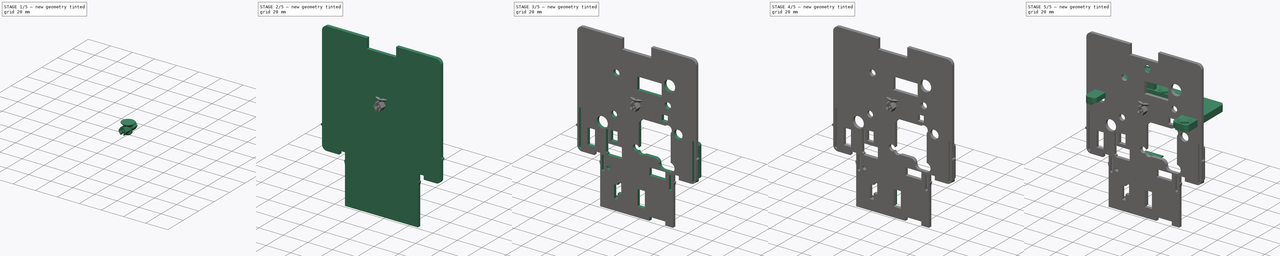
[diagram: build sequence overview — one tinted view per stage of 5, left to right]
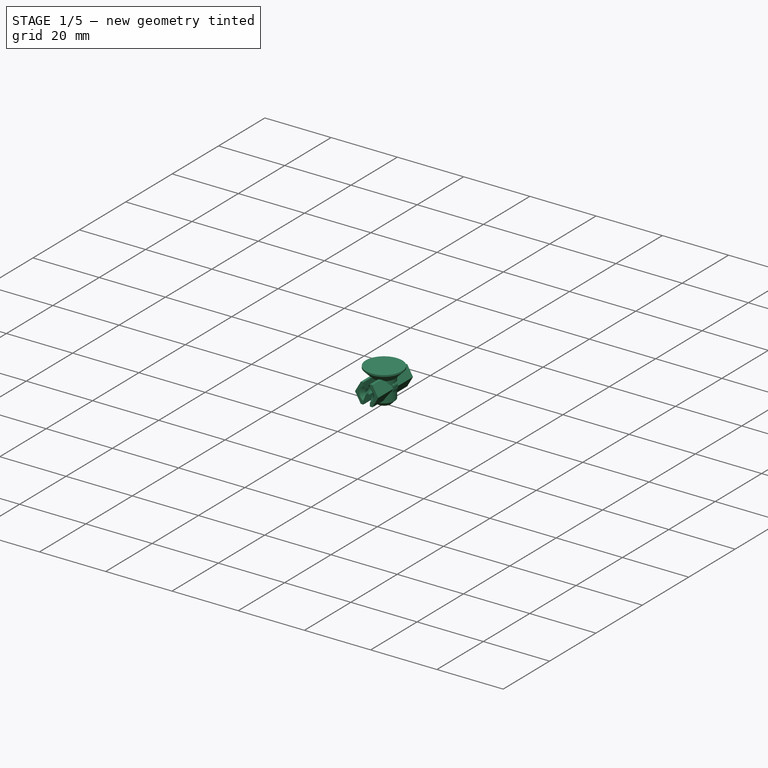
[diagram: stage 1 of 5 — iso view after this stage's code; geometry added in this stage tinted green]
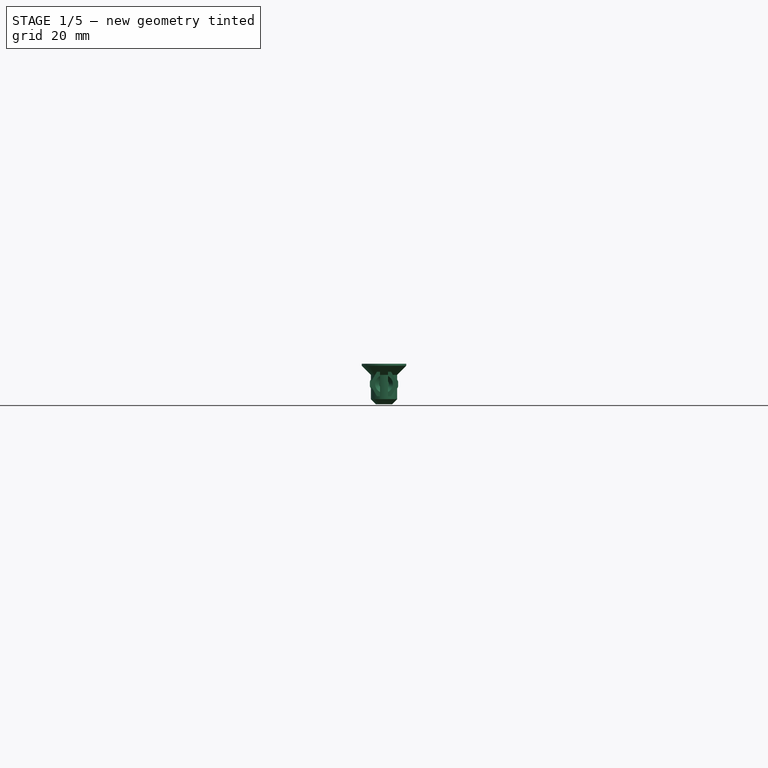
[diagram: stage 1 of 5 — front view after this stage's code; geometry added in this stage tinted green]
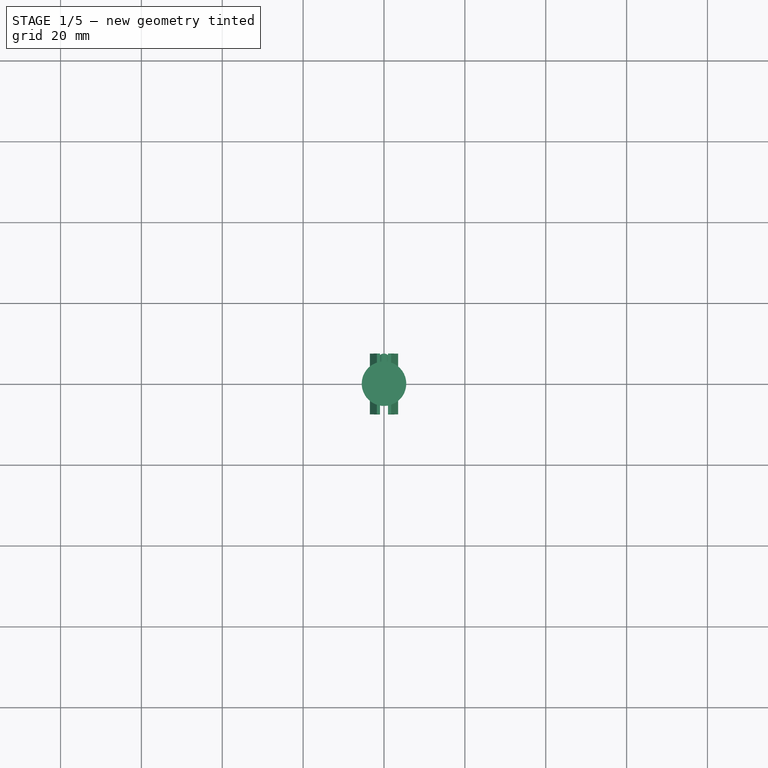
[diagram: stage 1 of 5 — top view after this stage's code; geometry added in this stage tinted green]
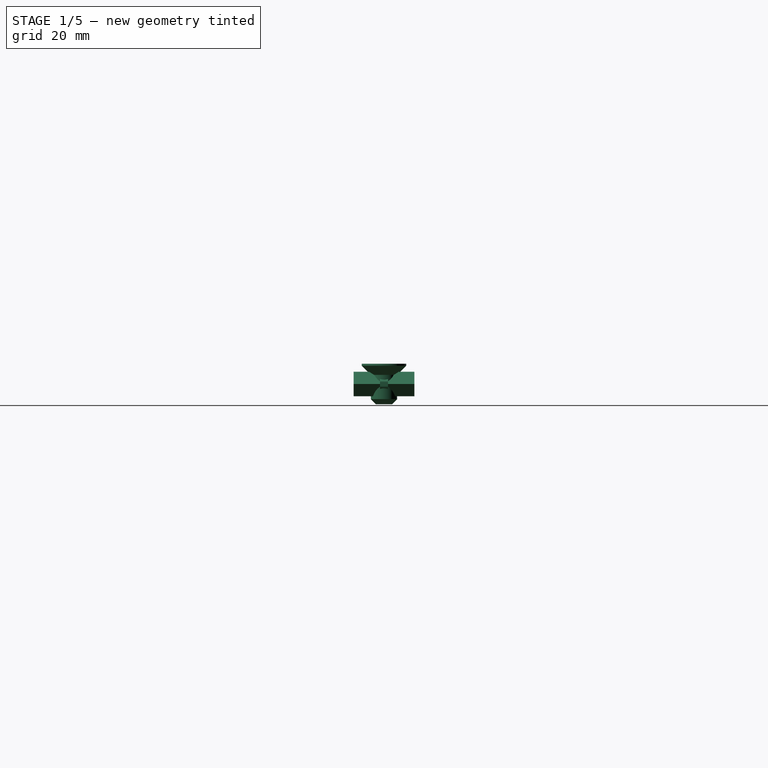
[diagram: stage 1 of 5 — right view after this stage's code; geometry added in this stage tinted green]
FCSTD DOCUMENT  (FreeCAD 1.1RUnknown)
Label: Sensors_Board
License: All rights reserved
LicenseURL: https://en.wikipedia.org/wiki/All_rights_reserved
objects: Sketcher::SketchObject×26, PartDesign::Pad×25, PartDesign::Pocket×8, PartDesign::Fillet×7, App::Point×5, PartDesign::Body×5, PartDesign::Chamfer×4, PartDesign::Mirrored×2, PartDesign::Hole×1, PartDesign::Revolution×1, Part::FeaturePython×1, PartDesign::Boolean×1
note: 202 computed .brp shape members not serialized (recipe doc carries the construction recipe); baked Part::Feature solids carry a one-line shape summary decoded from their .brp

FEATURE [PartDesign::Body] Body004  label="Sensors board"
  AllowCompound = false
  Group = -> [Sketch019,Pad010,Pad047,Pad039,Pad038,Fillet028,Pad048,Fillet029,Sketch022,Pocket005,Sketch029,Sketch033,Pad021,Sketch034,Pad022,Sketch035,Pocket010,Fillet010,Sketch036,Pocket032,Pad049,Pocket012,Pad063,Pad064,Chamfer004,Fillet021,Sketch038,Sketch066,Sketch065,Chamfer001,Sketch087,Pad073,Sketch088,Pad072,Pad074,Sketch090,Pad069,Pad070,Sketch091,Pad071,Pad075,Sketch092,Hole,Sketch095,Pad078,Pad079,+1 more]
  Origin = -> Origin004
  Placement = pos=(6e-16,11.4,-4.79) rot=(0,0,-1;3.14159rad)
  Tip = -> Fillet030
FEATURE [App::Point] Origin029
  Role = Origin
FEATURE [Sketcher::SketchObject] Sketch096
  ArcFitTolerance = 1e-06
  AttachmentSupport = -> [Origin028]
  ExternalTypes = [0]
  FullyConstrained = true
  MakeInternals = false
  MapMode = 5
  Placement = pos=(0,0,0) rot=(0.57735,0.57735,0.57735;2.0944rad)
  _ExternalGeoVersion = 1
  sketch-geometry (7):
    g0: LineSegment StartX=0 StartY=5 StartZ=0 EndX=5.5 EndY=5 EndZ=0
    g1: LineSegment StartX=5.5 StartY=5 StartZ=0 EndX=5.5 EndY=4.5 EndZ=0
    g2: LineSegment StartX=5.5 StartY=4.5 StartZ=0 EndX=3.25 EndY=2.25 EndZ=0
    g3: LineSegment StartX=3.25 StartY=2.25 StartZ=0 EndX=3.25 EndY=-3.75 EndZ=0
    g4: LineSegment StartX=3.25 StartY=-3.75 StartZ=0 EndX=2 EndY=-5 EndZ=0
    g5: LineSegment StartX=2 StartY=-5 StartZ=0 EndX=0 EndY=-5 EndZ=0
    g6: LineSegment StartX=0 StartY=-5 StartZ=0 EndX=0 EndY=5 EndZ=0
  constraints (20):
    c: Distance(g0) = 5.5
    c: PointOnObject(g0,g-2)
    c: Horizontal(g0)
    c: Distance(g1) = 0.5
    c: Coincident(g1,g0)
    c: Vertical(g1)
    c: Coincident(g2,g1)
    c: Angle(g1,g2) = 2.35619
    c: Coincident(g2,g3)
    c: Vertical(g3)
    c: Coincident(g3,g4)
    c: Coincident(g4,g5)
    c: Horizontal(g5)
    c: Coincident(g5,g6)
    c: Coincident(g6,g0)
    c: DistanceY(g6,g6) = 10
    c: Parallel(g4,g2)
    c: Distance(g3,g6) = 3.25
    c: Distance(g5,g5) = 2
    c: Symmetric(g0,g5,g-1)
FEATURE [PartDesign::Revolution] Revolution
  Angle = 360
  Angle2 = 0
  Axis = (0,0,1)
  Base = (0,0,0)
  FuseOrder = 0
  Profile = -> Sketch096
  ReferenceAxis = -> Sketch096 [V_Axis]
  Refine = true
  Reversed = true
  Suppressed = false
  Type = 0
FEATURE [PartDesign::Body] Body005  label="Bbolt_M6"
  AllowCompound = true
  Group = -> [Sketch096,Revolution,Sketch097,Pocket,Boolean]
  Origin = -> Origin028
  Placement = pos=(0,10.4,-6.4) rot=(1,0,0;1.5708rad)
  Tip = -> Boolean
FEATURE [Sketcher::SketchObject] Sketch082
  ArcFitTolerance = 1e-06
  AttachmentSupport = -> [XY_Plane015]
  ExternalTypes = [0]
  FullyConstrained = true
  MakeInternals = false
  MapMode = 5
  _ExternalGeoVersion = 0
  sketch-geometry (12):
    g0: ArcOfCircle CenterX=0 CenterY=6 CenterZ=0 NormalX=0 NormalY=0 NormalZ=1 AngleXU=0 Radius=1.5 StartAngle=5.6975 EndAngle=10.0105
    g1: ArcOfCircle CenterX=-2.5 CenterY=4.34169 CenterZ=0 NormalX=0 NormalY=0 NormalZ=1 AngleXU=0 Radius=1.5 StartAngle=1e-16 EndAngle=0.585686
    g2: ArcOfCircle CenterX=2.5 CenterY=4.34169 CenterZ=0 NormalX=0 NormalY=0 NormalZ=1 AngleXU=0 Radius=1.5 StartAngle=2.55591 EndAngle=3.14159
    g3: LineSegment [constr] StartX=0 StartY=6 StartZ=0 EndX=-2.5 EndY=4.34169 EndZ=0
    g4: LineSegment [constr] StartX=0 StartY=6 StartZ=0 EndX=2.5 EndY=4.34169 EndZ=0
    g5: LineSegment StartX=-1 StartY=4.34169 StartZ=0 EndX=-1 EndY=1 EndZ=0
    g6: LineSegment StartX=-1 StartY=1 StartZ=0 EndX=-3.5 EndY=1 EndZ=0
    g7: LineSegment StartX=-3.5 StartY=1 StartZ=0 EndX=-3.5 EndY=-1 EndZ=0
    g8: LineSegment StartX=-3.5 StartY=-1 StartZ=0 EndX=3.5 EndY=-1 EndZ=0
    g9: LineSegment StartX=3.5 StartY=-1 StartZ=0 EndX=3.5 EndY=1 EndZ=0
    g10: LineSegment StartX=3.5 StartY=1 StartZ=0 EndX=1 EndY=1 EndZ=0
    g11: LineSegment StartX=1 StartY=1 StartZ=0 EndX=1 EndY=4.34169 EndZ=0
  constraints (34):
    c: PointOnObject(g0,g-2)
    c: Horizontal(g0,g0)
    c: Radius(g0) = 1.5
    c: Coincident(g1,g0)
    c: Coincident(g2,g0)
    c: Coincident(g3,g0)
    c: Coincident(g3,g1)
    c: Coincident(g4,g0)
    c: Coincident(g4,g2)
    c: PointOnObject(g0,g4)
    c: PointOnObject(g0,g3)
    c: Horizontal(g2,g2)
    c: Horizontal(g1,g1)
    c: Horizontal(g1,g2)
    c: Tangent(g1,g5) = 1.5708
    c: Coincident(g5,g6)
    c: Horizontal(g6)
    c: Coincident(g6,g7)
    c: Vertical(g7)
    c: Coincident(g7,g8)
    c: Coincident(g8,g9)
    c: Coincident(g9,g10)
    c: Horizontal(g10)
    c: Coincident(g10,g11)
    c: Coincident(g11,g2)
    c: Vertical(g11)
    c: Symmetric(g7,g8,g-2)
    c: Horizontal(g10,g5)
    c: DistanceX(g8,g8) = 7
    c: DistanceY(g9,g9) = 2
    c: Symmetric(g9,g8,g-1)
    c: Distance(g11,g5) = 2
    c: Distance(g0,g10) = 5
    c: Radius(g2) = 1.5
FEATURE [PartDesign::Pad] Pad061
  Direction = (0,0,1)
  Length = 1.4
  Length2 = 1.4
  Profile = -> Sketch082
  ReferenceAxis = -> Sketch082 [N_Axis]
  Refine = true
  Reversed = true
  SideType = 1
  Suppressed = false
  Type = 0
  Type2 = 0
FEATURE [Sketcher::SketchObject] Sketch083
  ArcFitTolerance = 1e-06
  AttachmentSupport = -> [Pad061]
  ExternalTypes = [0]
  FullyConstrained = true
  MakeInternals = false
  MapMode = 5
  Placement = pos=(0,1,0) rot=(0,0.707107,0.707107;3.14159rad)
  _ExternalGeoVersion = 0
  sketch-geometry (2):
    g0: Circle CenterX=0 CenterY=0 CenterZ=0 NormalX=0 NormalY=0 NormalZ=1 AngleXU=0 Radius=1.5
    g1: Circle CenterX=0 CenterY=0 CenterZ=0 NormalX=0 NormalY=0 NormalZ=1 AngleXU=0 Radius=2.5
  constraints (4):
    c: Diameter(g0) = 3
    c: Coincident(g0,g-1)
    c: Coincident(g1,g0)
    c: Diameter(g1) = 5
FEATURE [PartDesign::Pocket] Pocket035
  BaseFeature = -> Pad061
  Direction = (0,-1,2e-16)
  Length = 7
  Length2 = 5
  Profile = -> Sketch083
  ReferenceAxis = -> Sketch083 [N_Axis]
  Refine = true
  Reversed = true
  SideType = 0
  Suppressed = false
  Type = 0
  Type2 = 0
FEATURE [PartDesign::Fillet] Fillet036
  Base = -> Pocket035 [Edge11,Edge27,Edge25,Edge9]
  BaseFeature = -> Pocket035
  Radius = 1
  Refine = true
  SupportTransform = false
  Suppressed = false
  UseAllEdges = false
FEATURE [App::Point] Origin021
  Role = Origin
FEATURE [PartDesign::Body] Body015  label="SDS_Board_Spacer_Rail"
  AllowCompound = false
  Group = -> [Sketch082,Pad061,Sketch083,Pocket035,Fillet036]
  Origin = -> Origin015
  Tip = -> Fillet036
FEATURE [Sketcher::SketchObject] Sketch084
  ArcFitTolerance = 1e-06
  AttachmentSupport = -> [XZ_Plane016]
  ExternalTypes = [0]
  FullyConstrained = true
  MakeInternals = false
  MapMode = 5
  Placement = pos=(0,0,0) rot=(1,0,0;1.5708rad)
  _ExternalGeoVersion = 0
  sketch-geometry (7):
    g0: LineSegment StartX=3.5 StartY=0 StartZ=0 EndX=1.75 EndY=3.03109 EndZ=0
    g1: LineSegment StartX=1.75 StartY=3.03109 StartZ=0 EndX=-1.75 EndY=3.03109 EndZ=0
    g2: LineSegment StartX=-1.75 StartY=3.03109 StartZ=0 EndX=-3.5 EndY=4e-16 EndZ=0
    g3: LineSegment StartX=-3.5 StartY=4e-16 StartZ=0 EndX=-1.75 EndY=-3.03109 EndZ=0
    g4: LineSegment StartX=-1.75 StartY=-3.03109 StartZ=0 EndX=1.75 EndY=-3.03109 EndZ=0
    g5: LineSegment StartX=1.75 StartY=-3.03109 StartZ=0 EndX=3.5 EndY=0 EndZ=0
    g6: Circle [constr] CenterX=0 CenterY=0 CenterZ=0 NormalX=0 NormalY=0 NormalZ=1 AngleXU=0 Radius=3.5
  constraints (16):
    c: Coincident(g0,g1)
    c: Coincident(g1,g2)
    c: Coincident(g2,g3)
    c: Coincident(g3,g4)
    c: Coincident(g4,g5)
    c: Coincident(g5,g0)
    c: Equal(g0, g1-g5) x5
    c: PointOnObject(g0,g6)
    c: PointOnObject(g1,g6)
    c: PointOnObject(g2,g6)
    c: PointOnObject(g3,g6)
    c: PointOnObject(g4,g6)
    c: PointOnObject(g5,g6)
    c: Coincident(g6,g-1)
    c: PointOnObject(g5,g-1)
    c: Diameter(g6) = 7
FEATURE [PartDesign::Pad] Pad062
  Direction = (0,-1,2e-16)
  Length = 7.5
  Length2 = 7.5
  Placement = pos=(0,0,0) rot=(1,0,0;1.5708rad)
  Profile = -> Sketch084
  ReferenceAxis = -> Sketch084 [N_Axis]
  Refine = true
  Reversed = true
  SideType = 1
  Suppressed = false
  Type = 0
  Type2 = 0
FEATURE [Sketcher::SketchObject] Sketch085
  ArcFitTolerance = 1e-06
  AttachmentSupport = -> [Pad062]
  ExternalTypes = [0]
  FullyConstrained = true
  MakeInternals = false
  MapMode = 5
  Placement = pos=(0,7.5,0) rot=(-1,0,0;1.5708rad)
  _ExternalGeoVersion = 0
  sketch-geometry (8):
    g0: LineSegment StartX=-1 StartY=-3.25 StartZ=0 EndX=1 EndY=-3.25 EndZ=0
    g1: LineSegment StartX=1 StartY=3.25 StartZ=0 EndX=-1 EndY=3.25 EndZ=0
    g2: ArcOfCircle CenterX=0 CenterY=0 CenterZ=0 NormalX=0 NormalY=0 NormalZ=1 AngleXU=0 Radius=1.2 StartAngle=2.55591 EndAngle=3.72728
    g3: ArcOfCircle CenterX=0 CenterY=0 CenterZ=0 NormalX=0 NormalY=0 NormalZ=1 AngleXU=0 Radius=1.2 StartAngle=5.6975 EndAngle=6.86887
    g4: LineSegment StartX=-1 StartY=3.25 StartZ=0 EndX=-1 EndY=0.663325 EndZ=0
    g5: LineSegment StartX=-1 StartY=-3.25 StartZ=0 EndX=-1 EndY=-0.663325 EndZ=0
    g6: LineSegment StartX=1 StartY=-0.663325 StartZ=0 EndX=1 EndY=-3.25 EndZ=0
    g7: LineSegment StartX=1 StartY=3.25 StartZ=0 EndX=1 EndY=0.663325 EndZ=0
  constraints (23):
    c: Horizontal(g0)
    c: Horizontal(g1)
    c: Symmetric(g0,g1,g-1)
    c: DistanceX(g1,g1) = 2
    c: Distance(g0,g1) = 6.5
    c: Coincident(g2,g-1)
    c: Coincident(g3,g2)
    c: Coincident(g4,g1)
    c: Coincident(g4,g2)
    c: Coincident(g5,g0)
    c: Coincident(g5,g2)
    c: Coincident(g6,g3)
    c: Coincident(g6,g0)
    c: Coincident(g7,g1)
    c: Coincident(g7,g3)
    c: Vertical(g7)
    c: Vertical(g6)
    c: Vertical(g5)
    c: Vertical(g4)
    c: Horizontal(g2,g3)
    c: Horizontal(g2,g3)
    c: Radius(g3) = 1.2
    c: Equal(g1,g0)
FEATURE [PartDesign::Pocket] Pocket036
  BaseFeature = -> Pad062
  Direction = (0,-1,-2e-16)
  Length = 5.5
  Length2 = 5
  Placement = pos=(0,0,0) rot=(1,0,0;1.5708rad)
  Profile = -> Sketch085
  ReferenceAxis = -> Sketch085 [N_Axis]
  Refine = true
  SideType = 0
  Suppressed = false
  Type = 0
  Type2 = 0
FEATURE [PartDesign::Mirrored] Mirrored008
  BaseFeature = -> Pocket036
  MirrorPlane = -> XZ_Plane016
  Originals = -> [Pocket036]
  Placement = pos=(0,0,0) rot=(1,0,0;1.5708rad)
  Refine = true
  Suppressed = false
  TransformMode = 0
FEATURE [Sketcher::SketchObject] Sketch086
  ArcFitTolerance = 1e-06
  AttachmentSupport = -> [Mirrored008]
  ExternalTypes = [0]
  FullyConstrained = true
  MakeInternals = false
  MapMode = 5
  Placement = pos=(0,2,5e-16) rot=(-1,0,0;1.5708rad)
  _ExternalGeoVersion = 0
  sketch-geometry (1):
    g0: Circle CenterX=0 CenterY=0 CenterZ=0 NormalX=0 NormalY=0 NormalZ=1 AngleXU=0 Radius=1.6
  constraints (2):
    c: Diameter(g0) = 3.2
    c: Coincident(g0,g-1)
FEATURE [PartDesign::Pocket] Pocket037
  BaseFeature = -> Mirrored008
  Direction = (0,-1,-2e-16)
  Length = 3.2
  Length2 = 5
  Placement = pos=(0,0,0) rot=(1,0,0;1.5708rad)
  Profile = -> Sketch086
  ReferenceAxis = -> Sketch086 [N_Axis]
  Refine = true
  Reversed = true
  SideType = 0
  Suppressed = false
  Type = 0
  Type2 = 0
FEATURE [PartDesign::Mirrored] Mirrored009
  BaseFeature = -> Pocket037
  MirrorPlane = -> XZ_Plane016
  Originals = -> [Pocket037]
  Placement = pos=(0,0,0) rot=(1,0,0;1.5708rad)
  Refine = true
  Suppressed = false
  TransformMode = 0
FEATURE [PartDesign::Chamfer] Chamfer007
  Angle = 45
  Base = -> Mirrored009 [Edge53,Edge20,Edge24,Edge58]
  BaseFeature = -> Mirrored009
  ChamferType = 0
  FlipDirection = false
  Placement = pos=(0,0,0) rot=(1,0,0;1.5708rad)
  Refine = true
  Size = 1
  Size2 = 1
  SupportTransform = false
  Suppressed = false
  UseAllEdges = false
FEATURE [App::Point] Origin020
  Role = Origin
FEATURE [PartDesign::Body] Body016  label="SDS_Board_Locking_Clip"
  AllowCompound = false
  Group = -> [Sketch084,Pad062,Sketch085,Pocket036,Mirrored008,Sketch086,Pocket037,Mirrored009,Chamfer007]
  Origin = -> Origin016
  Tip = -> Chamfer007
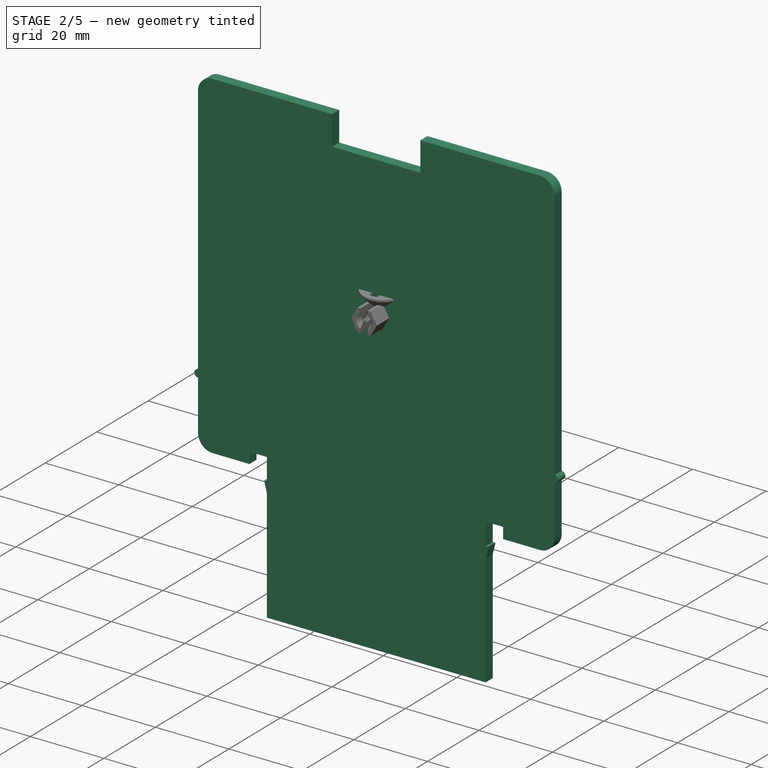
[diagram: stage 2 of 5 — iso view after this stage's code; geometry added in this stage tinted green]
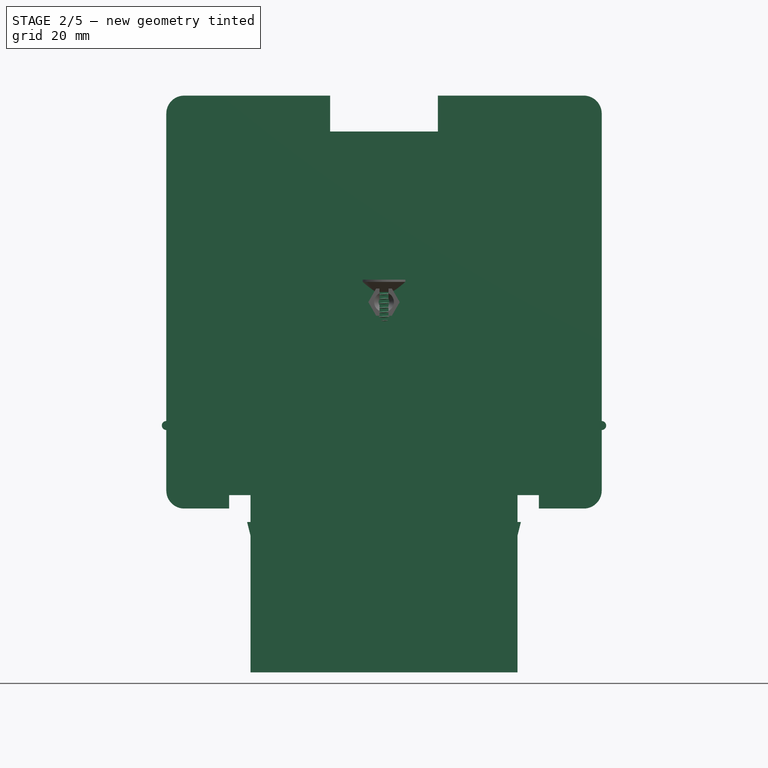
[diagram: stage 2 of 5 — front view after this stage's code; geometry added in this stage tinted green]
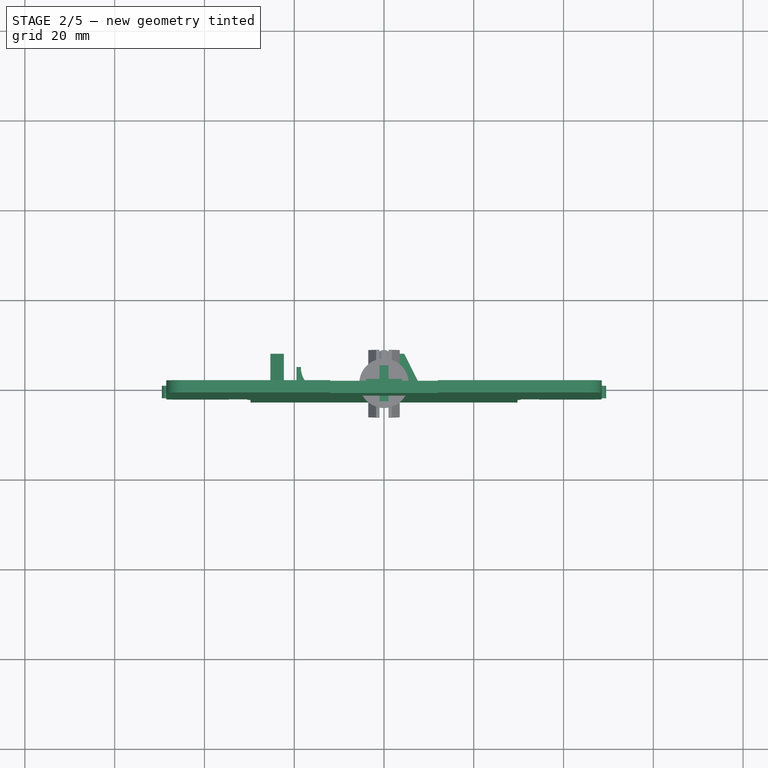
[diagram: stage 2 of 5 — top view after this stage's code; geometry added in this stage tinted green]
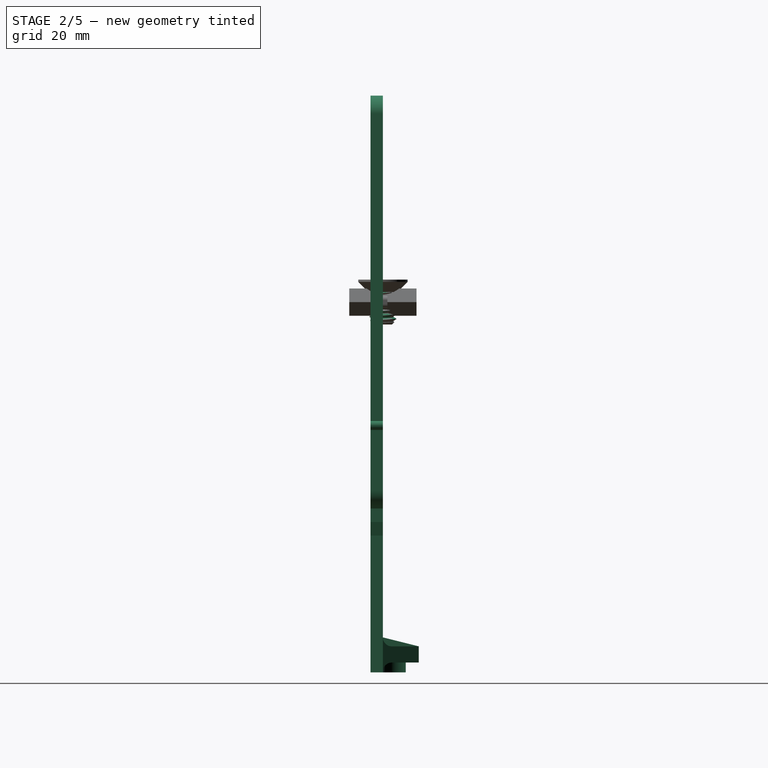
[diagram: stage 2 of 5 — right view after this stage's code; geometry added in this stage tinted green]
FEATURE [App::Point] Origin027
  Role = Origin
FEATURE [Sketcher::SketchObject] Sketch019
  ArcFitTolerance = 1e-06
  AttachmentSupport = -> [XZ_Plane004]
  ExternalTypes = [0]
  FullyConstrained = true
  MakeInternals = false
  MapMode = 5
  Placement = pos=(0,0,0) rot=(1,0,0;1.5708rad)
  _ExternalGeoVersion = 0
  sketch-geometry (30):
    g0: ArcOfCircle CenterX=-44.5 CenterY=42 CenterZ=0 NormalX=0 NormalY=0 NormalZ=1 AngleXU=0 Radius=4 StartAngle=1.5708 EndAngle=3.14159
    g1: ArcOfCircle CenterX=44.5 CenterY=42 CenterZ=0 NormalX=0 NormalY=0 NormalZ=1 AngleXU=0 Radius=4 StartAngle=0 EndAngle=1.5708
    g2: ArcOfCircle CenterX=-44.5 CenterY=-42 CenterZ=0 NormalX=0 NormalY=0 NormalZ=1 AngleXU=0 Radius=4 StartAngle=3.14159 EndAngle=4.71239
    g3: ArcOfCircle CenterX=44.5 CenterY=-42 CenterZ=0 NormalX=0 NormalY=0 NormalZ=1 AngleXU=0 Radius=4 StartAngle=4.71239 EndAngle=6.28319
    g4: LineSegment StartX=-44.5 StartY=-46 StartZ=0 EndX=-34.5 EndY=-46 EndZ=0
    g5: LineSegment StartX=44.5 StartY=-46 StartZ=0 EndX=34.5 EndY=-46 EndZ=0
    g6: LineSegment StartX=34.5 StartY=-46 StartZ=0 EndX=34.5 EndY=-43 EndZ=0
    g7: LineSegment StartX=-34.5 StartY=-46 StartZ=0 EndX=-34.5 EndY=-43 EndZ=0
    g8: LineSegment StartX=-34.5 StartY=-43 StartZ=0 EndX=-29.75 EndY=-43 EndZ=0
    g9: LineSegment StartX=34.5 StartY=-43 StartZ=0 EndX=29.75 EndY=-43 EndZ=0
    g10: LineSegment StartX=-29.75 StartY=-82.5 StartZ=0 EndX=29.75 EndY=-82.5 EndZ=0
    g11: LineSegment StartX=-12 StartY=46 StartZ=0 EndX=-12 EndY=38 EndZ=0
    g12: LineSegment StartX=-12 StartY=38 StartZ=0 EndX=12 EndY=38 EndZ=0
    g13: LineSegment StartX=12 StartY=38 StartZ=0 EndX=12 EndY=46 EndZ=0
    g14: LineSegment StartX=-44.5 StartY=46 StartZ=0 EndX=-12 EndY=46 EndZ=0
    g15: LineSegment StartX=12 StartY=46 StartZ=0 EndX=44.5 EndY=46 EndZ=0
    g16: LineSegment StartX=29.75 StartY=-52 StartZ=0 EndX=30.5 EndY=-49 EndZ=0
    g17: LineSegment StartX=-29.75 StartY=-52 StartZ=0 EndX=-30.5 EndY=-49 EndZ=0
    g18: ArcOfCircle CenterX=48.5 CenterY=-27.5 CenterZ=0 NormalX=0 NormalY=0 NormalZ=1 AngleXU=0 Radius=1 StartAngle=4.71239 EndAngle=7.85398
    g19: ArcOfCircle CenterX=-48.5 CenterY=-27.5 CenterZ=0 NormalX=0 NormalY=0 NormalZ=1 AngleXU=0 Radius=1 StartAngle=1.5708 EndAngle=4.71239
    g20: LineSegment StartX=-48.5 StartY=-42 StartZ=0 EndX=-48.5 EndY=-28.5 EndZ=0
    g21: LineSegment StartX=-48.5 StartY=-26.5 StartZ=0 EndX=-48.5 EndY=42 EndZ=0
    g22: LineSegment StartX=48.5 StartY=42 StartZ=0 EndX=48.5 EndY=-26.5 EndZ=0
    g23: LineSegment StartX=48.5 StartY=-42 StartZ=0 EndX=48.5 EndY=-28.5 EndZ=0
    g24: LineSegment StartX=29.75 StartY=-49 StartZ=0 EndX=30.5 EndY=-49 EndZ=0
    g25: LineSegment StartX=29.75 StartY=-43 StartZ=0 EndX=29.75 EndY=-49 EndZ=0
    g26: LineSegment StartX=29.75 StartY=-52 StartZ=0 EndX=29.75 EndY=-82.5 EndZ=0
    g27: LineSegment StartX=-30.5 StartY=-49 StartZ=0 EndX=-29.75 EndY=-49 EndZ=0
    g28: LineSegment StartX=-29.75 StartY=-43 StartZ=0 EndX=-29.75 EndY=-49 EndZ=0
    g29: LineSegment StartX=-29.75 StartY=-52 StartZ=0 EndX=-29.75 EndY=-82.5 EndZ=0
  constraints (89):
    c: Symmetric(g0,g1,g-2)
    c: Equal(g1,g0)
    c: Radius(g1) = 4
    c: Horizontal(g0,g0)
    c: Vertical(g0,g0)
    c: Vertical(g1,g1)
    c: Horizontal(g1,g1)
    c: DistanceX(g0,g1) = 97
    c: Vertical(g3,g3)
    c: Vertical(g2,g2)
    c: Horizontal(g2,g2)
    c: Horizontal(g3,g3)
    c: Equal(g2,g3)
    c: Equal(g0,g2)
    c: Tangent(g4,g2) = -1.5708
    c: Coincident(g5,g3)
    c: Horizontal(g5)
    c: Horizontal(g4,g5)
    c: DistanceY(g3,g1) = 92
    c: Equal(g4,g5)
    c: DistanceX(g4,g5) = 69
    c: Coincident(g6,g5)
    c: Vertical(g6)
    c: Coincident(g7,g4)
    c: Vertical(g7)
    c: Equal(g6,g7)
    c: DistanceY(g6,g6) = 3
    c: Coincident(g8,g7)
    c: Horizontal(g8)
    c: Coincident(g9,g6)
    c: Horizontal(g9)
    c: Horizontal(g10)
    c: Equal(g8,g9)
    c: DistanceX(g10,g10) = 59.5
    c: DistanceY(g10,g9) = 39.5
    c: Symmetric(g3,g1,g-1)
    c: Coincident(g11,g12)
    c: Coincident(g12,g13)
    c: Vertical(g11)
    c: Vertical(g13)
    c: Horizontal(g12)
    c: Symmetric(g13,g11,g-2)
    c: DistanceY(g13,g13) = 8
    c: DistanceX(g11,g13) = 24
    c: Coincident(g14,g0)
    c: Coincident(g14,g11)
    c: Coincident(g15,g13)
    c: Tangent(g15,g1) = 1.5708
    c: Symmetric(g17,g16,g-2)
    c: Equal(g19,g18)
    c: Radius(g18) = 1
    c: Symmetric(g19,g18,g-2)
    c: Distance(g19,g-1) = 26.5
    c: Coincident(g20,g2)
    c: Coincident(g20,g19)
    c: Vertical(g20)
    c: Coincident(g21,g0)
    c: Vertical(g21)
    c: Vertical(g19,g19)
    c: Coincident(g22,g1)
    c: Coincident(g22,g18)
    c: Vertical(g22)
    c: Coincident(g23,g3)
    c: Coincident(g23,g18)
    c: Vertical(g23)
    c: Vertical(g18,g18)
    c: Coincident(g19,g21)
    c: DistanceY(g17,g-1) = 49
    c: Coincident(g24,g16)
    c: Horizontal(g24)
    c: Vertical(g24,g16)
    c: DistanceX(g24,g24) = 0.75
    c: Coincident(g25,g9)
    c: Coincident(g25,g24)
    c: Vertical(g25)
    c: Coincident(g26,g16)
    c: Coincident(g26,g10)
    c: Vertical(g26)
    c: DistanceY(g16,g24) = 3
    c: Coincident(g27,g17)
    c: Horizontal(g27)
    c: Equal(g27,g24)
    c: Coincident(g28,g8)
    c: Coincident(g28,g27)
    c: Coincident(g29,g17)
    c: Coincident(g29,g10)
    c: Vertical(g29)
    c: Horizontal(g16,g17)
    c: Vertical(g17,g27)
FEATURE [PartDesign::Pad] Pad010  label="Base"
  Direction = (0,-1,2e-16)
  Length = 2.75
  Length2 = 10
  Placement = pos=(0,0,0) rot=(1,0,0;1.5708rad)
  Profile = -> Sketch019
  ReferenceAxis = -> Sketch019 [N_Axis]
  SideType = 0
  Suppressed = false
  Type = 0
  Type2 = 0
FEATURE [Sketcher::SketchObject] Sketch022  label="holes"
  ArcFitTolerance = 1e-06
  AttachmentSupport = -> [Pad010]
  ExternalTypes = [0]
  FullyConstrained = true
  MakeInternals = false
  MapMode = 5
  Placement = pos=(0,-2.75,0) rot=(1,0,0;1.5708rad)
  _ExternalGeoVersion = 0
  sketch-geometry (84):
    g0: LineSegment [constr] StartX=-32 StartY=27 StartZ=0 EndX=-32 EndY=-43 EndZ=0
    g1: LineSegment [constr] StartX=-32 StartY=-43 StartZ=0 EndX=38 EndY=-43 EndZ=0
    g2: LineSegment [constr] StartX=38 StartY=-43 StartZ=0 EndX=38 EndY=27 EndZ=0
    g3: LineSegment [constr] StartX=38 StartY=27 StartZ=0 EndX=-32 EndY=27 EndZ=0
    g4: LineSegment StartX=0.5 StartY=21.5 StartZ=0 EndX=0.5 EndY=11.5 EndZ=0
    g5: LineSegment StartX=0.5 StartY=11.5 StartZ=0 EndX=20.5 EndY=11.5 EndZ=0
    g6: LineSegment StartX=20.5 StartY=11.5 StartZ=0 EndX=20.5 EndY=21.5 EndZ=0
    g7: LineSegment StartX=20.5 StartY=21.5 StartZ=0 EndX=0.5 EndY=21.5 EndZ=0
    g8: Circle CenterX=-16.5 CenterY=19.5 CenterZ=0 NormalX=0 NormalY=0 NormalZ=1 AngleXU=0 Radius=2.5
    g9: Circle CenterX=25.5 CenterY=6.5 CenterZ=0 NormalX=0 NormalY=0 NormalZ=1 AngleXU=0 Radius=2.5
    g10: Circle CenterX=-18.5 CenterY=-11.5 CenterZ=0 NormalX=0 NormalY=0 NormalZ=1 AngleXU=0 Radius=2.5
    g11: Circle CenterX=34 CenterY=-12.5 CenterZ=0 NormalX=0 NormalY=0 NormalZ=1 AngleXU=0 Radius=3.5
    g12: LineSegment StartX=-21 StartY=-23.75 StartZ=0 EndX=-21 EndY=-31.75 EndZ=0
    g13: LineSegment StartX=-21 StartY=-31.75 StartZ=0 EndX=-15.5 EndY=-31.75 EndZ=0
    g14: LineSegment StartX=-15.5 StartY=-31.75 StartZ=0 EndX=-15.5 EndY=-23.75 EndZ=0
    g15: LineSegment StartX=-15.5 StartY=-23.75 StartZ=0 EndX=-21 EndY=-23.75 EndZ=0
    g16: ArcOfCircle CenterX=-24 CenterY=-25 CenterZ=0 NormalX=0 NormalY=0 NormalZ=1 AngleXU=0 Radius=1 StartAngle=0 EndAngle=3.14159
    g17: ArcOfCircle CenterX=-24 CenterY=-41 CenterZ=0 NormalX=0 NormalY=0 NormalZ=1 AngleXU=0 Radius=1 StartAngle=3.14159 EndAngle=4.71239
    g18: LineSegment StartX=-25 StartY=-25 StartZ=0 EndX=-25 EndY=-41 EndZ=0
    g19: LineSegment StartX=-23 StartY=-25 StartZ=0 EndX=-23 EndY=-34.25 EndZ=0
    g20: LineSegment StartX=-23 StartY=-34.25 StartZ=0 EndX=-12 EndY=-34.25 EndZ=0
    g21: LineSegment StartX=-12 StartY=-43 StartZ=0 EndX=-24 EndY=-43 EndZ=0
    g22: LineSegment StartX=-24 StartY=-42 StartZ=0 EndX=-24 EndY=-43 EndZ=0
    g23: ArcOfCircle CenterX=25.7287 CenterY=-10.9213 CenterZ=0 NormalX=0 NormalY=0 NormalZ=1 AngleXU=0 Radius=3 StartAngle=5.49779 EndAngle=8.63938
    g24: ArcOfCircle CenterX=-0.5 CenterY=-31.5 CenterZ=0 NormalX=0 NormalY=0 NormalZ=1 AngleXU=0 Radius=2.5 StartAngle=0.348166 EndAngle=5.39179
    g25: ArcOfCircle CenterX=3.97132 CenterY=-32.6787 CenterZ=0 NormalX=0 NormalY=0 NormalZ=1 AngleXU=0 Radius=3 StartAngle=3.39985 EndAngle=5.49779
    g26: LineSegment StartX=1.85 StartY=-30.6471 StartZ=0 EndX=1.85 EndY=-11.982 EndZ=0
    g27: LineSegment StartX=1.85 StartY=-11.982 StartZ=0 EndX=5.03198 EndY=-8.8 EndZ=0
    g28: LineSegment StartX=5.03198 StartY=-8.8 StartZ=0 EndX=23.6074 EndY=-8.8 EndZ=0
    g29: LineSegment StartX=27.85 StartY=-13.0426 StartZ=0 EndX=27.85 EndY=-35.0175 EndZ=0
    g30: LineSegment StartX=14.8 StartY=-34.8 StartZ=0 EndX=6.09264 EndY=-34.8 EndZ=0
    g31: LineSegment [constr] StartX=23.6074 StartY=-8.8 StartZ=0 EndX=27.85 EndY=-13.0426 EndZ=0
    g32: LineSegment [constr] StartX=6.09264 StartY=-34.8 StartZ=0 EndX=1.85 EndY=-30.5574 EndZ=0
    g33: LineSegment StartX=20.5 StartY=-1 StartZ=0 EndX=20.5 EndY=-6 EndZ=0
    g34: LineSegment StartX=20.5 StartY=-6 StartZ=0 EndX=25.5 EndY=-6 EndZ=0
    g35: LineSegment StartX=25.5 StartY=-6 StartZ=0 EndX=25.5 EndY=-1 EndZ=0
    g36: LineSegment StartX=25.5 StartY=-1 StartZ=0 EndX=20.5 EndY=-1 EndZ=0
    g37: Circle CenterX=27 CenterY=21.5 CenterZ=0 NormalX=0 NormalY=0 NormalZ=1 AngleXU=0 Radius=4.5
    g38: Circle CenterX=-28 CenterY=-20 CenterZ=0 NormalX=0 NormalY=0 NormalZ=1 AngleXU=0 Radius=4.5
    g39: ArcOfCircle CenterX=27.5 CenterY=-38.5 CenterZ=0 NormalX=0 NormalY=0 NormalZ=1 AngleXU=0 Radius=3.5 StartAngle=4.71239 EndAngle=7.75381
    g40: LineSegment StartX=45.5 StartY=-14 StartZ=0 EndX=45.5 EndY=-44.5 EndZ=0
    g41: LineSegment StartX=47 StartY=-14 StartZ=0 EndX=47 EndY=-43 EndZ=0
    g42: LineSegment StartX=-45.5 StartY=-14 StartZ=0 EndX=-45.5 EndY=-44.5 EndZ=0
    g43: LineSegment StartX=-47 StartY=-14 StartZ=0 EndX=-47 EndY=-43 EndZ=0
    g44: LineSegment StartX=-47 StartY=-14 StartZ=0 EndX=-45.5 EndY=-14 EndZ=0
    g45: ArcOfCircle CenterX=-45.5 CenterY=-43 CenterZ=0 NormalX=0 NormalY=0 NormalZ=1 AngleXU=0 Radius=1.5 StartAngle=3.14159 EndAngle=4.71239
    g46: LineSegment StartX=45.5 StartY=-14 StartZ=0 EndX=47 EndY=-14 EndZ=0
    g47: ArcOfCircle CenterX=45.5 CenterY=-43 CenterZ=0 NormalX=0 NormalY=0 NormalZ=1 AngleXU=0 Radius=1.5 StartAngle=4.71239 EndAngle=6.28319
    g48: LineSegment StartX=27.5 StartY=-42 StartZ=0 EndX=22 EndY=-42 EndZ=0
    g49: ArcOfCircle CenterX=14.8 CenterY=-38.4 CenterZ=0 NormalX=0 NormalY=0 NormalZ=1 AngleXU=0 Radius=3.6 StartAngle=1e-16 EndAngle=1.5708
    g50: ArcOfCircle CenterX=22 CenterY=-38.4 CenterZ=0 NormalX=0 NormalY=0 NormalZ=1 AngleXU=0 Radius=3.6 StartAngle=3.14159 EndAngle=4.71239
    g51: LineSegment StartX=10.5 StartY=-82.5 StartZ=0 EndX=23.5 EndY=-82.5 EndZ=0
    g52: LineSegment StartX=23.5 StartY=-82.5 StartZ=0 EndX=23.5 EndY=-79.5 EndZ=0
    g53: LineSegment StartX=23.5 StartY=-79.5 StartZ=0 EndX=10.5 EndY=-79.5 EndZ=0
    g54: LineSegment StartX=10.5 StartY=-79.5 StartZ=0 EndX=10.5 EndY=-82.5 EndZ=0
    g55: LineSegment StartX=10.5 StartY=-43 StartZ=0 EndX=10.5 EndY=-49 EndZ=0
    g56: LineSegment StartX=10.5 StartY=-49 StartZ=0 EndX=23.5 EndY=-49 EndZ=0
    g57: LineSegment StartX=23.5 StartY=-49 StartZ=0 EndX=23.5 EndY=-43 EndZ=0
    g58: LineSegment StartX=23.5 StartY=-43 StartZ=0 EndX=10.5 EndY=-43 EndZ=0
    g59: LineSegment StartX=-18.5 StartY=-63 StartZ=0 EndX=-18.5 EndY=-74 EndZ=0
    g60: LineSegment StartX=-18.5 StartY=-74 StartZ=0 EndX=-15.5 EndY=-74 EndZ=0
    g61: LineSegment StartX=-15.5 StartY=-74 StartZ=0 EndX=-15.5 EndY=-69 EndZ=0
    g62: LineSegment StartX=-15.5 StartY=-69 StartZ=0 EndX=-12.5 EndY=-69 EndZ=0
    g63: LineSegment StartX=-12.5 StartY=-69 StartZ=0 EndX=-12.5 EndY=-61 EndZ=0
    g64: LineSegment StartX=-12.5 StartY=-61 StartZ=0 EndX=-15.5 EndY=-61 EndZ=0
    g65: LineSegment StartX=-15.5 StartY=-61 StartZ=0 EndX=-15.5 EndY=-63 EndZ=0
    g66: LineSegment StartX=-15.5 StartY=-63 StartZ=0 EndX=-18.5 EndY=-63 EndZ=0
    g67: LineSegment StartX=-12 StartY=-43 StartZ=0 EndX=-12 EndY=-34.25 EndZ=0
    g68: LineSegment StartX=0.75 StartY=-61.5 StartZ=0 EndX=0.75 EndY=-74.5 EndZ=0
    g69: LineSegment StartX=0.75 StartY=-74.5 StartZ=0 EndX=6.75 EndY=-74.5 EndZ=0
    g70: LineSegment StartX=6.75 StartY=-74.5 StartZ=0 EndX=6.75 EndY=-61.5 EndZ=0
    g71: LineSegment StartX=6.75 StartY=-61.5 StartZ=0 EndX=0.75 EndY=-61.5 EndZ=0
    g72: LineSegment StartX=-34 StartY=-27 StartZ=0 EndX=-40 EndY=-27 EndZ=0
    g73: LineSegment StartX=-40 StartY=-27 StartZ=0 EndX=-40 EndY=-40 EndZ=0
    g74: LineSegment StartX=-40 StartY=-40 StartZ=0 EndX=-34 EndY=-40 EndZ=0
    g75: LineSegment StartX=-34 StartY=-40 StartZ=0 EndX=-34 EndY=-27 EndZ=0
    g76: ArcOfCircle CenterX=27.5 CenterY=-45 CenterZ=0 NormalX=0 NormalY=0 NormalZ=1 AngleXU=0 Radius=1 StartAngle=-9e-16 EndAngle=3.14159
    g77: ArcOfCircle CenterX=27.5 CenterY=-55 CenterZ=0 NormalX=0 NormalY=0 NormalZ=1 AngleXU=0 Radius=1 StartAngle=3.14159 EndAngle=6.28319
    g78: LineSegment StartX=28.5 StartY=-45 StartZ=0 EndX=28.5 EndY=-55 EndZ=0
    g79: LineSegment StartX=26.5 StartY=-45 StartZ=0 EndX=26.5 EndY=-55 EndZ=0
    g80: ArcOfCircle CenterX=-27.5 CenterY=-45 CenterZ=0 NormalX=0 NormalY=0 NormalZ=1 AngleXU=0 Radius=1 StartAngle=-9e-16 EndAngle=3.14159
    g81: ArcOfCircle CenterX=-27.5 CenterY=-55 CenterZ=0 NormalX=0 NormalY=0 NormalZ=1 AngleXU=0 Radius=1 StartAngle=3.14159 EndAngle=6.28319
    g82: LineSegment StartX=-26.5 StartY=-45 StartZ=0 EndX=-26.5 EndY=-55 EndZ=0
    g83: LineSegment StartX=-28.5 StartY=-45 StartZ=0 EndX=-28.5 EndY=-55 EndZ=0
  constraints (251):
    c: Coincident(g0,g1)
    c: Coincident(g1,g2)
    c: Coincident(g2,g3)
    c: Coincident(g3,g0)
    c: Vertical(g0)
    c: Vertical(g2)
    c: Horizontal(g1)
    c: DistanceX(g3,g3) = 70
    c: Equal(g3,g2)
    c: Coincident(g4,g5)
    c: Coincident(g5,g6)
    c: Coincident(g6,g7)
    c: Coincident(g7,g4)
    c: Vertical(g4)
    c: Vertical(g6)
    c: Horizontal(g5)
    c: Horizontal(g7)
    c: DistanceY(g0,g-1) = 43
    c: Coincident(g12,g13)
    c: Coincident(g13,g14)
    c: Coincident(g14,g15)
    c: Coincident(g15,g12)
    c: Vertical(g12)
    c: Vertical(g14)
    c: Horizontal(g13)
    c: Horizontal(g15)
    c: Tangent(g16,g18) = -1.5708
    c: Tangent(g17,g18) = -1.5708
    c: Coincident(g19,g16)
    c: Vertical(g19)
    c: Coincident(g20,g19)
    c: Horizontal(g20)
    c: Horizontal(g21)
    c: Coincident(g22,g17)
    c: Coincident(g22,g21)
    c: Vertical(g22)
    c: Horizontal(g16,g16)
    c: Coincident(g25,g24)
    c: Coincident(g26,g24)
    c: Vertical(g26)
    c: Coincident(g27,g26)
    c: Coincident(g28,g23)
    c: Horizontal(g28)
    c: Coincident(g29,g23)
    c: Vertical(g29)
    c: Coincident(g30,g25)
    c: Horizontal(g30)
    c: Distance(g9,g2) = 12.5
    c: Distance(g9,g3) = 20.5
    c: Diameter(g9) = 5
    c: Diameter(g11) = 7
    c: Diameter(g8) = 5
    c: Diameter(g10) = 5
    c: Radius(g24) = 2.5
    c: Distance(g12,g19) = 2
    c: DistanceX(g15,g15) = 5.5
    c: DistanceY(g14,g14) = 8
    c: Distance(g20,g13) = 2.5
    c: Distance(g17,g1) = 2
    c: Distance(g17,g0) = 8
    c: Distance(g10,g0) = 13.5
    c: Distance(g10,g1) = 31.5
    c: Distance(g29,g26) = 26
    c: Distance(g30,g28) = 26
    c: Coincident(g27,g28)
    c: Coincident(g31,g23)
    c: Coincident(g31,g23)
    c: PointOnObject(g23,g31)
    c: Distance(g2,g29) = 10.15
    c: Distance(g1,g30) = 8.2
    c: Distance(g27,g27) = 4.5
    c: Coincident(g32,g25)
    c: Vertical(g32,g24)
    c: Equal(g32,g31)
    c: Parallel(g31,g32)
    c: DistanceY(g4,g4) = 10
    c: DistanceX(g5,g5) = 20
    c: Distance(g3,g7) = 5.5
    c: Distance(g2,g6) = 17.5
    c: Distance(g8,g3) = 7.5
    c: Distance(g8,g0) = 15.5
    c: Distance(g11,g2) = 4
    c: Distance(g11,g1) = 30.5
    c: Distance(g24,g1) = 11.5
    c: Distance(g24,g2) = 38.5
    c: Symmetric(g32,g25,g25)
    c: Coincident(g33,g34)
    c: Coincident(g34,g35)
    c: Coincident(g35,g36)
    c: Coincident(g36,g33)
    c: Vertical(g33)
    c: Vertical(g35)
    c: Horizontal(g34)
    c: Horizontal(g36)
    c: Distance(g33,g35) = 5
    c: Equal(g33,g36)
    c: Distance(g2,g35) = 12.5
    c: Distance(g36,g3) = 28
    c: Diameter(g37) = 9
    c: Distance(g39,g2) = 10.5
    c: Distance(g39,g1) = 4.5
    c: Radius(g39) = 3.5
    c: Coincident(g29,g39)
    c: Radius(g23) = 3
    c: Angle(g26,g27) = 2.35619
    c: Perpendicular(g31,g27)
    c: Distance(g37,g3) = 5.5
    c: Distance(g38,g0) = 4
    c: Distance(g38,g1) = 23
    c: Equal(g38,g37)
    c: Distance(g37,g2) = 11
    c: Distance(g2,g-2) = 38
    c: Horizontal(g3)
    c: Vertical(g40)
    c: Vertical(g41)
    c: Vertical(g42)
    c: Vertical(g43)
    c: Symmetric(g40,g42,g-2)
    c: Equal(g42,g40)
    c: Distance(g40,g-2) = 45.5
    c: DistanceY(g41,g41) = 29
    c: Distance(g42,g-1) = 44.5
    c: Coincident(g44,g43)
    c: Coincident(g44,g42)
    c: Horizontal(g44)
    c: DistanceX(g44,g44) = 1.5
    c: PointOnObject(g45,g42)
    c: Coincident(g45,g43)
    c: Coincident(g45,g42)
    c: Horizontal(g45,g43)
    c: Coincident(g46,g40)
    c: Coincident(g46,g41)
    c: Horizontal(g46)
    c: Equal(g46,g44)
    c: PointOnObject(g47,g40)
    c: Coincident(g47,g40)
    c: Coincident(g47,g41)
    c: Horizontal(g47,g41)
    c: Vertical(g39,g39)
    c: Tangent(g48,g39) = 1.5708
    c: Coincident(g49,g30)
    c: Coincident(g50,g48)
    c: Coincident(g50,g49)
    c: Vertical(g30,g49)
    c: Vertical(g48,g50)
    c: Horizontal(g49,g50)
    c: Horizontal(g49,g50)
    c: DistanceX(g48,g48) = 5.5
    c: Equal(g50,g49)
    c: Coincident(g51,g52)
    c: Coincident(g52,g53)
    c: Coincident(g53,g54)
    c: Coincident(g54,g51)
    c: Horizontal(g51)
    c: Horizontal(g53)
    c: Vertical(g52)
    c: Vertical(g54)
    c: DistanceY(g52,g52) = 3
    c: Distance(g1,g51) = 39.5
    c: Coincident(g55,g56)
    c: Coincident(g56,g57)
    c: Coincident(g57,g58)
    c: Coincident(g58,g55)
    c: Vertical(g55)
    c: Vertical(g57)
    c: Horizontal(g56)
    c: Horizontal(g58)
    c: PointOnObject(g55,g1)
    c: Vertical(g59)
    c: Coincident(g59,g60)
    c: Horizontal(g60)
    c: Coincident(g60,g61)
    c: Vertical(g61)
    c: Coincident(g61,g62)
    c: Horizontal(g62)
    c: Coincident(g62,g63)
    c: Vertical(g63)
    c: Coincident(g63,g64)
    c: Horizontal(g64)
    c: Coincident(g64,g65)
    c: Vertical(g65)
    c: Coincident(g65,g66)
    c: Coincident(g66,g59)
    c: Horizontal(g66)
    c: Equal(g62,g66)
    c: DistanceX(g62,g62) = 3
    c: Vertical(g64,g60)
    c: Distance(g-2,g63) = 12.5
    c: DistanceY(g59,g59) = 11
    c: DistanceY(g63,g63) = 8
    c: Distance(g64,g60) = 13
    c: Distance(g1,g64) = 18
    c: DistanceY(g19,g19) = 9.25
    c: Vertical(g18)
    c: DistanceY(g17,g16) = 16
    c: DistanceX(g20,g20) = 11
    c: Radius(g16) = 1
    c: Equal(g17,g16)
    c: Vertical(g17,g17)
    c: Coincident(g67,g20)
    c: Vertical(g67)
    c: Coincident(g68,g69)
    c: Coincident(g69,g70)
    c: Coincident(g70,g71)
    c: Coincident(g71,g68)
    c: Vertical(g68)
    c: Vertical(g70)
    c: Horizontal(g69)
    c: Horizontal(g71)
    c: Distance(g70,g-2) = 6.75
    c: Equal(g55,g71)
    c: DistanceX(g51,g51) = 13
    c: Equal(g53,g56)
    c: Vertical(g56,g52)
    c: Equal(g56,g70)
    c: Distance(g1,g71) = 18.5
    c: Coincident(g21,g67)
    c: DistanceX(g71,g71) = 6
    c: Coincident(g72,g73)
    c: Coincident(g73,g74)
    c: Coincident(g74,g75)
    c: Coincident(g75,g72)
    c: Horizontal(g72)
    c: Horizontal(g74)
    c: Vertical(g73)
    c: Vertical(g75)
    c: Equal(g74,g71)
    c: Equal(g73,g56)
    c: Distance(g1,g74) = 3
    c: DistanceY(g67,g67) = 8.75
    c: Tangent(g76,g78) = 1.5708
    c: Tangent(g76,g79) = -1.5708
    c: Tangent(g77,g78) = 1.5708
    c: Tangent(g77,g79) = -1.5708
    c: Equal(g76,g77)
    c: Radius(g76) = 1
    c: Vertical(g78)
    c: Tangent(g80,g82) = 1.5708
    c: Tangent(g80,g83) = -1.5708
    c: Tangent(g81,g82) = 1.5708
    c: Tangent(g81,g83) = -1.5708
    c: Equal(g80,g81)
    c: Vertical(g82)
    c: Equal(g80,g76)
    c: Equal(g79,g82)
    c: Symmetric(g81,g77,g-2)
    c: DistanceY(g79,g79) = 10
    c: Distance(g76,g1) = 2
    c: DistanceX(g81,g77) = 55
    c: Distance(g55,g-2) = 10.5
    c: Distance(g0,g75) = 2
FEATURE [Sketcher::SketchObject] Sketch029  label="sound_sensor"
  ArcFitTolerance = 1e-06
  AttachmentSupport = -> [Pad010]
  ExternalTypes = [0]
  FullyConstrained = true
  MakeInternals = false
  MapMode = 5
  Placement = pos=(0,-3.3e-15,0) rot=(-1,0,0;1.5708rad)
  _ExternalGeoVersion = 0
  sketch-geometry (21):
    g0: Circle CenterX=-23 CenterY=52.5 CenterZ=0 NormalX=0 NormalY=0 NormalZ=1 AngleXU=0 Radius=1.5
    g1: LineSegment StartX=-12 StartY=59 StartZ=0 EndX=-12 EndY=47 EndZ=0
    g2: LineSegment StartX=-12 StartY=47 StartZ=0 EndX=-10 EndY=47 EndZ=0
    g3: LineSegment StartX=-10 StartY=47 StartZ=0 EndX=-10 EndY=59 EndZ=0
    g4: LineSegment StartX=-10 StartY=59 StartZ=0 EndX=-12 EndY=59 EndZ=0
    g5: LineSegment StartX=-18.75 StartY=61 StartZ=0 EndX=-26.75 EndY=61 EndZ=0
    g6: LineSegment StartX=-26.75 StartY=61 StartZ=0 EndX=-26.75 EndY=44.5 EndZ=0
    g7: LineSegment StartX=-26.75 StartY=44.5 StartZ=0 EndX=-18.75 EndY=44.5 EndZ=0
    g8: LineSegment StartX=-18.75 StartY=46.5 StartZ=0 EndX=-24.75 EndY=46.5 EndZ=0
    g9: LineSegment StartX=-24.75 StartY=46.5 StartZ=0 EndX=-24.75 EndY=47 EndZ=0
    g10: LineSegment StartX=-24.75 StartY=59 StartZ=0 EndX=-24.75 EndY=58.5 EndZ=0
    g11: LineSegment StartX=-24.75 StartY=58.5 StartZ=0 EndX=-18.75 EndY=58.5 EndZ=0
    g12: LineSegment StartX=-24.75 StartY=59 StartZ=0 EndX=-18.75 EndY=59 EndZ=0
    g13: LineSegment StartX=-18.75 StartY=59 StartZ=0 EndX=-18.75 EndY=58.5 EndZ=0
    g14: LineSegment StartX=-18.75 StartY=46.5 StartZ=0 EndX=-18.75 EndY=47 EndZ=0
    g15: LineSegment StartX=-18.75 StartY=47 StartZ=0 EndX=-24.75 EndY=47 EndZ=0
    g16: LineSegment [constr] StartX=-24.75 StartY=59 StartZ=0 EndX=-26.75 EndY=59 EndZ=0
    g17: LineSegment StartX=-18.75 StartY=59 StartZ=0 EndX=-18.75 EndY=61 EndZ=0
    g18: LineSegment [constr] StartX=-23 StartY=52.5 StartZ=0 EndX=-24.75 EndY=52.5 EndZ=0
    g19: LineSegment StartX=-24.75 StartY=58.5 StartZ=0 EndX=-24.75 EndY=47 EndZ=0
    g20: LineSegment StartX=-18.75 StartY=44.5 StartZ=0 EndX=-18.75 EndY=46.5 EndZ=0
  constraints (60):
    c: DistanceX(g0,g-1) = 23
    c: Diameter(g0) = 3
    c: Distance(g0,g-1) = 52.5
    c: Coincident(g1,g2)
    c: Coincident(g2,g3)
    c: Coincident(g3,g4)
    c: Coincident(g4,g1)
    c: Vertical(g1)
    c: Vertical(g3)
    c: Horizontal(g2)
    c: Horizontal(g4)
    c: Horizontal(g5)
    c: Coincident(g5,g6)
    c: Vertical(g6)
    c: Coincident(g6,g7)
    c: Horizontal(g7)
    c: Horizontal(g8)
    c: Coincident(g8,g9)
    c: Vertical(g9)
    c: Vertical(g10)
    c: Coincident(g10,g11)
    c: Horizontal(g11)
    c: Coincident(g10,g12)
    c: Horizontal(g12)
    c: Coincident(g12,g13)
    c: Coincident(g13,g11)
    c: Coincident(g8,g14)
    c: Vertical(g14)
    c: Coincident(g14,g15)
    c: Coincident(g15,g9)
    c: Horizontal(g15)
    c: Vertical(g13)
    c: Coincident(g16,g10)
    c: PointOnObject(g16,g6)
    c: Horizontal(g16)
    c: DistanceX(g4,g4) = 2
    c: Coincident(g17,g12)
    c: Coincident(g17,g5)
    c: Vertical(g17)
    c: Equal(g17,g4)
    c: Equal(g16,g4)
    c: Equal(g13,g14)
    c: DistanceY(g13,g13) = 0.5
    c: Distance(g15,g12) = 12
    c: Coincident(g18,g0)
    c: Horizontal(g18)
    c: Symmetric(g10,g8,g18)
    c: Horizontal(g1,g12)
    c: Horizontal(g1,g14)
    c: DistanceX(g11,g11) = 6
    c: Equal(g15,g11)
    c: Coincident(g19,g10)
    c: Coincident(g19,g9)
    c: Vertical(g19)
    c: DistanceX(g18,g18) = 1.75
    c: Distance(g1,g19) = 12.75
    c: Coincident(g20,g7)
    c: Coincident(g20,g8)
    c: Vertical(g20)
    c: Equal(g20,g4)
FEATURE [Sketcher::SketchObject] Sketch033  label="airflow_base01"
  ArcFitTolerance = 1e-06
  AttachmentSupport = -> [Pad010]
  ExternalTypes = [0]
  FullyConstrained = true
  MakeInternals = false
  MapMode = 5
  Placement = pos=(0,-3.3e-15,0) rot=(-1,0,0;1.5708rad)
  _ExternalGeoVersion = 0
  sketch-geometry (7):
    g0: LineSegment StartX=44 StartY=46 StartZ=0 EndX=44 EndY=22.5 EndZ=0
    g1: LineSegment StartX=39 StartY=38.5 StartZ=0 EndX=39 EndY=20.5 EndZ=0
    g2: ArcOfCircle CenterX=34.5 CenterY=38.5 CenterZ=0 NormalX=0 NormalY=0 NormalZ=1 AngleXU=0 Radius=4.5 StartAngle=7e-16 EndAngle=1.5708
    g3: LineSegment StartX=34.5 StartY=43 StartZ=0 EndX=34.5 EndY=46 EndZ=0
    g4: LineSegment StartX=34.5 StartY=46 StartZ=0 EndX=44 EndY=46 EndZ=0
    g5: ArcOfCircle CenterX=42 CenterY=22.5 CenterZ=0 NormalX=0 NormalY=0 NormalZ=1 AngleXU=0 Radius=2 StartAngle=4.71239 EndAngle=6.28319
    g6: LineSegment StartX=42 StartY=20.5 StartZ=0 EndX=39 EndY=20.5 EndZ=0
  constraints (23):
    c: Vertical(g0)
    c: Vertical(g1)
    c: Coincident(g2,g1)
    c: Horizontal(g1,g2)
    c: Vertical(g2,g2)
    c: Coincident(g2,g3)
    c: Coincident(g3,g4)
    c: Coincident(g4,g0)
    c: Distance(g-2,g3) = 34.5
    c: DistanceX(g4,g4) = 9.5
    c: Radius(g2) = 4.5
    c: Vertical(g3)
    c: Distance(g3,g3) = 3
    c: Horizontal(g4)
    c: Coincident(g5,g0)
    c: Horizontal(g5,g0)
    c: Coincident(g6,g5)
    c: Coincident(g6,g1)
    c: Horizontal(g6)
    c: Radius(g5) = 2
    c: Vertical(g5,g5)
    c: Distance(g4,g6) = 25.5
    c: Distance(g-1,g4) = 46
FEATURE [Sketcher::SketchObject] Sketch038  label="Leds_board"
  ArcFitTolerance = 1e-06
  AttachmentSupport = -> [Pad010]
  ExternalTypes = [0]
  FullyConstrained = true
  MakeInternals = false
  MapMode = 5
  Placement = pos=(0,-3.3e-15,0) rot=(-1,0,0;1.5708rad)
  _ExternalGeoVersion = 0
  sketch-geometry (18):
    g0: LineSegment StartX=-25.3 StartY=76.7 StartZ=0 EndX=-25.3 EndY=79.5 EndZ=0
    g1: LineSegment StartX=-25.3 StartY=79.5 StartZ=0 EndX=-24.5 EndY=79.5 EndZ=0
    g2: LineSegment StartX=-24.5 StartY=79.5 StartZ=0 EndX=-24.5 EndY=77.5 EndZ=0
    g3: LineSegment StartX=-24.5 StartY=77.5 StartZ=0 EndX=-22.3 EndY=77.5 EndZ=0
    g4: LineSegment StartX=-22.3 StartY=77.5 StartZ=0 EndX=-22.3 EndY=76.7 EndZ=0
    g5: LineSegment StartX=-22.3 StartY=76.7 StartZ=0 EndX=-25.3 EndY=76.7 EndZ=0
    g6: LineSegment StartX=2.7 StartY=80.3 StartZ=0 EndX=2.7 EndY=79.5 EndZ=0
    g7: LineSegment StartX=2.7 StartY=79.5 StartZ=0 EndX=3.7 EndY=79.5 EndZ=0
    g8: LineSegment StartX=3.7 StartY=79.5 StartZ=0 EndX=3.7 EndY=77.5 EndZ=0
    g9: LineSegment StartX=3.7 StartY=77.5 StartZ=0 EndX=2.7 EndY=77.5 EndZ=0
    g10: LineSegment StartX=2.7 StartY=77.5 StartZ=0 EndX=2.7 EndY=76.7 EndZ=0
    g11: LineSegment StartX=2.7 StartY=76.7 StartZ=0 EndX=4.5 EndY=76.7 EndZ=0
    g12: LineSegment StartX=4.5 StartY=76.7 StartZ=0 EndX=4.5 EndY=80.3 EndZ=0
    g13: LineSegment StartX=4.5 StartY=80.3 StartZ=0 EndX=2.7 EndY=80.3 EndZ=0
    g14: LineSegment StartX=-19.5 StartY=82.5 StartZ=0 EndX=-19.5 EndY=79.5 EndZ=0
    g15: LineSegment StartX=-19.5 StartY=79.5 StartZ=0 EndX=-18.5 EndY=79.5 EndZ=0
    g16: LineSegment StartX=-18.5 StartY=79.5 StartZ=0 EndX=-18.5 EndY=82.5 EndZ=0
    g17: LineSegment StartX=-18.5 StartY=82.5 StartZ=0 EndX=-19.5 EndY=82.5 EndZ=0
  constraints (54):
    c: Vertical(g0)
    c: Coincident(g0,g1)
    c: Horizontal(g1)
    c: Coincident(g1,g2)
    c: Vertical(g2)
    c: Coincident(g2,g3)
    c: Horizontal(g3)
    c: Coincident(g3,g4)
    c: Vertical(g4)
    c: Coincident(g4,g5)
    c: Coincident(g5,g0)
    c: Horizontal(g5)
    c: DistanceY(g2,g2) = 2
    c: Vertical(g6)
    c: Coincident(g6,g7)
    c: Coincident(g7,g8)
    c: Vertical(g8)
    c: Coincident(g8,g9)
    c: Horizontal(g9)
    c: Coincident(g9,g10)
    c: Vertical(g10)
    c: Coincident(g10,g11)
    c: Horizontal(g11)
    c: Coincident(g11,g12)
    c: Vertical(g12)
    c: Coincident(g12,g13)
    c: Coincident(g13,g6)
    c: Horizontal(g13)
    c: Horizontal(g7)
    c: Equal(g2,g8)
    c: Horizontal(g3,g9)
    c: Equal(g4,g10)
    c: Equal(g6,g4)
    c: Vertical(g6,g9)
    c: DistanceX(g7,g7) = 1
    c: DistanceY(g6,g6) = 0.8
    c: Distance(g12,g8) = 0.8
    c: Distance(g8,g2) = 28.2
    c: Equal(g1,g6)
    c: DistanceX(g5,g5) = 3
    c: Distance(g-1,g3) = 77.5
    c: Distance(g-2,g2) = 24.5
    c: Coincident(g14,g15)
    c: Coincident(g15,g16)
    c: Coincident(g16,g17)
    c: Coincident(g17,g14)
    c: Vertical(g14)
    c: Vertical(g16)
    c: Horizontal(g15)
    c: Horizontal(g17)
    c: DistanceY(g16,g16) = 3
    c: DistanceX(g17,g17) = 1
    c: Distance(g-2,g16) = 18.5
    c: Distance(g-1,g15) = 79.5
FEATURE [PartDesign::Pad] Pad047  label="Leds_board_support-01"
  BaseFeature = -> Pad010
  Direction = (0,1,2e-16)
  Length = 8
  Length2 = 10
  Placement = pos=(0,0,0) rot=(1,0,0;1.5708rad)
  Profile = -> Sketch038 [Edge10,Edge14,Edge8,Edge7,Edge9,Edge13,Edge12,Edge11,Edge5,Edge6,Edge4,Edge3,Edge2,Edge1]
  ReferenceAxis = -> Sketch038 [N_Axis]
  Refine = true
  SideType = 0
  Suppressed = false
  Type = 0
  Type2 = 0
FEATURE [Sketcher::SketchObject] Sketch065  label="Leds_board-03"
  ArcFitTolerance = 1e-06
  AttachmentSupport = -> [Pad047]
  ExternalTypes = [0]
  FullyConstrained = true
  MakeInternals = false
  MapMode = 5
  Placement = pos=(0,0,-80.3) rot=(1,0,0;3.14159rad)
  _ExternalGeoVersion = 0
  sketch-geometry (3):
    g0: LineSegment StartX=4.5 StartY=-8 StartZ=0 EndX=4.5 EndY=0 EndZ=0
    g1: LineSegment StartX=4.5 StartY=0 StartZ=0 EndX=8.5 EndY=0 EndZ=0
    g2: LineSegment StartX=8.5 StartY=0 StartZ=0 EndX=4.5 EndY=-8 EndZ=0
  constraints (9):
    c: PointOnObject(g0,g-1)
    c: Vertical(g0)
    c: Coincident(g0,g1)
    c: PointOnObject(g1,g-1)
    c: Coincident(g1,g2)
    c: Coincident(g2,g0)
    c: DistanceY(g0,g0) = 8
    c: DistanceX(g1,g1) = 4
    c: Distance(g-2,g0) = 4.5
FEATURE [Sketcher::SketchObject] Sketch066  label="Leds_board-02"
  ArcFitTolerance = 1e-06
  AttachmentSupport = -> [Pad047]
  ExternalTypes = [0]
  FullyConstrained = true
  MakeInternals = false
  MapMode = 5
  Placement = pos=(-25.3,0,0) rot=(0.707107,0,-0.707107;3.14159rad)
  _ExternalGeoVersion = 0
  sketch-geometry (3):
    g0: LineSegment StartX=76.7 StartY=-8 StartZ=0 EndX=76.7 EndY=0 EndZ=0
    g1: LineSegment StartX=76.7 StartY=0 StartZ=0 EndX=74.7 EndY=0 EndZ=0
    g2: LineSegment StartX=74.7 StartY=0 StartZ=0 EndX=76.7 EndY=-8 EndZ=0
  constraints (9):
    c: PointOnObject(g0,g-1)
    c: Vertical(g0)
    c: Coincident(g0,g1)
    c: PointOnObject(g1,g-1)
    c: Coincident(g1,g2)
    c: Coincident(g2,g0)
    c: DistanceX(g1,g1) = 2
    c: DistanceY(g0,g0) = 8
    c: Distance(g-2,g0) = 76.7
FEATURE [PartDesign::Pad] Pad039  label="Leds_board_support-01.1"
  BaseFeature = -> Pad047
  Direction = (-1,0,-2e-16)
  Length = 3
  Length2 = 10
  Placement = pos=(0,0,0) rot=(1,0,0;1.5708rad)
  Profile = -> Sketch066
  ReferenceAxis = -> Sketch066 [N_Axis]
  Refine = true
  Reversed = true
  SideType = 0
  Suppressed = false
  Type = 0
  Type2 = 0
FEATURE [PartDesign::Pad] Pad038  label="Leds_board_support-01.2"
  BaseFeature = -> Pad039
  Direction = (0,0,-1)
  Length = 3.6
  Length2 = 10
  Placement = pos=(0,0,0) rot=(1,0,0;1.5708rad)
  Profile = -> Sketch065
  ReferenceAxis = -> Sketch065 [N_Axis]
  Refine = true
  Reversed = true
  SideType = 0
  Suppressed = false
  Type = 0
  Type2 = 0
FEATURE [PartDesign::Fillet] Fillet028  label="Leds_board_support-01.3"
  Base = -> Pad038 [Edge48,Edge46,Edge45,Edge49,Edge41,Edge39]
  BaseFeature = -> Pad038
  Placement = pos=(0,0,0) rot=(1,0,0;1.5708rad)
  Radius = 2
  Refine = true
  SupportTransform = false
  Suppressed = false
  UseAllEdges = false
FEATURE [PartDesign::Pad] Pad048  label="Leds_board_support-02"
  BaseFeature = -> Fillet028
  Direction = (0,1,2e-16)
  Length = 5.1
  Length2 = 10
  Placement = pos=(0,0,0) rot=(1,0,0;1.5708rad)
  Profile = -> Sketch038 [Edge18,Edge17,Edge16,Edge15]
  ReferenceAxis = -> Sketch038 [N_Axis]
  Refine = true
  SideType = 0
  Suppressed = false
  Type = 0
  Type2 = 0
FEATURE [PartDesign::Fillet] Fillet029  label="Leds_board_support-01.4"
  Base = -> Pad048 [Edge16]
  BaseFeature = -> Pad048
  Placement = pos=(0,0,0) rot=(1,0,0;1.5708rad)
  Radius = 4.9
  Refine = true
  SupportTransform = false
  Suppressed = false
  UseAllEdges = false
FEATURE [Sketcher::SketchObject] Sketch097
  ArcFitTolerance = 1e-06
  AttachmentSupport = -> [Revolution]
  ExternalTypes = [0]
  FullyConstrained = true
  MakeInternals = false
  MapMode = 5
  Placement = pos=(0,0,5) rot=(0,0,1;0rad)
  _ExternalGeoVersion = 1
  sketch-geometry (12):
    g0: LineSegment StartX=-1 StartY=4 StartZ=0 EndX=1 EndY=4 EndZ=0
    g1: LineSegment StartX=1 StartY=4 StartZ=0 EndX=1 EndY=1 EndZ=0
    g2: LineSegment StartX=1 StartY=1 StartZ=0 EndX=4 EndY=1 EndZ=0
    g3: LineSegment StartX=4 StartY=1 StartZ=0 EndX=4 EndY=-1 EndZ=0
    g4: LineSegment StartX=4 StartY=-1 StartZ=0 EndX=1 EndY=-1 EndZ=0
    g5: LineSegment StartX=1 StartY=-1 StartZ=0 EndX=1 EndY=-4 EndZ=0
    g6: LineSegment StartX=1 StartY=-4 StartZ=0 EndX=-1 EndY=-4 EndZ=0
    g7: LineSegment StartX=-1 StartY=-4 StartZ=0 EndX=-1 EndY=-1 EndZ=0
    g8: LineSegment StartX=-1 StartY=-1 StartZ=0 EndX=-4 EndY=-1 EndZ=0
    g9: LineSegment StartX=-4 StartY=-1 StartZ=0 EndX=-4 EndY=1 EndZ=0
    g10: LineSegment StartX=-4 StartY=1 StartZ=0 EndX=-1 EndY=1 EndZ=0
    g11: LineSegment StartX=-1 StartY=1 StartZ=0 EndX=-1 EndY=4 EndZ=0
  constraints (35):
    c: Horizontal(g0)
    c: Coincident(g0,g1)
    c: Vertical(g1)
    c: Coincident(g1,g2)
    c: Horizontal(g2)
    c: Coincident(g2,g3)
    c: Vertical(g3)
    c: Coincident(g3,g4)
    c: Horizontal(g4)
    c: Coincident(g4,g5)
    c: Vertical(g5)
    c: Coincident(g5,g6)
    c: Horizontal(g6)
    c: Coincident(g6,g7)
    c: Vertical(g7)
    c: Coincident(g7,g8)
    c: Horizontal(g8)
    c: Coincident(g8,g9)
    c: Vertical(g9)
    c: Coincident(g9,g10)
    c: Horizontal(g10)
    c: Coincident(g10,g11)
    c: Coincident(g11,g0)
    c: Vertical(g11)
    c: Equal(g8,g7)
    c: Equal(g7,g5)
    c: Equal(g5,g4)
    c: Equal(g4,g2)
    c: Equal(g2,g10)
    c: Equal(g9,g0)
    c: Equal(g0,g3)
    c: Equal(g11,g10)
    c: Symmetric(g7,g1,g-1)
    c: DistanceY(g3,g3) = 2
    c: DistanceX(g2,g2) = 3
FEATURE [PartDesign::Pocket] Pocket
  BaseFeature = -> Revolution
  Direction = (0,0,-1)
  Length = 1.5
  Length2 = 5
  Profile = -> Sketch097
  ReferenceAxis = -> Sketch097 [N_Axis]
  Refine = true
  SideType = 0
  Suppressed = false
  Type = 0
  Type2 = 0
FEATURE [Part::FeaturePython] ScrewDie  label="M6x7.25-ScrewDie"  # WARN: FeaturePython — macro-defined, semantics opaque (R4)
  BaseObject = -> Pocket [Edge44]
  Diameter = 8
  DiameterCustom = 6
  Invert = false
  LeftHanded = false
  Length = 7.25
  MatchOuter = false
  OffsetAngle = 0
  PitchCustom = 1
  Placement = pos=(0,0,-5) rot=(-1,0,0;3.14159rad)
  Thread = true
  Type = 0
FEATURE [PartDesign::Boolean] Boolean
  BaseFeature = -> Pocket
  Group = -> [ScrewDie]
  Refine = true
  Suppressed = false
  Type = 1
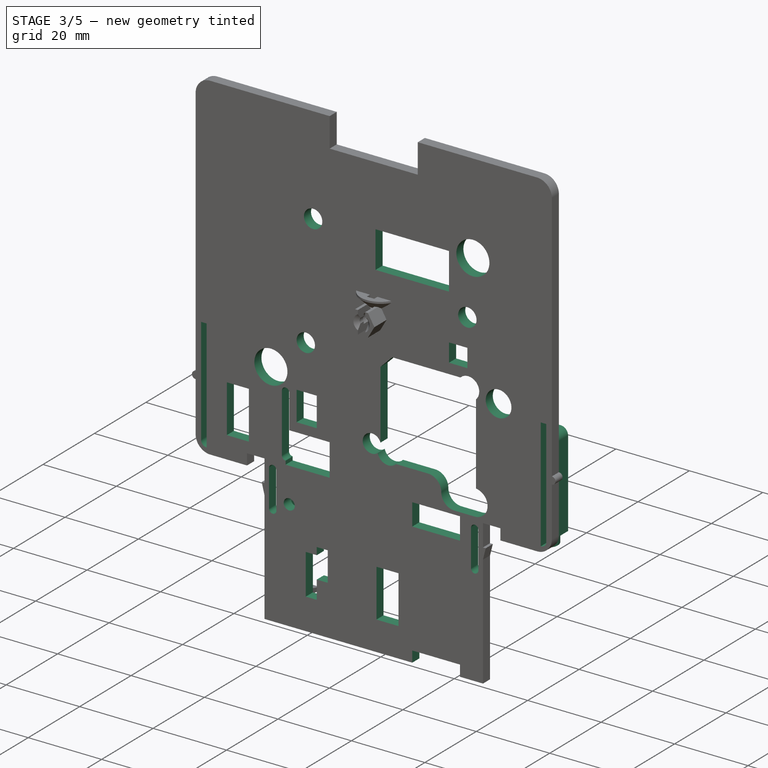
[diagram: stage 3 of 5 — iso view after this stage's code; geometry added in this stage tinted green]
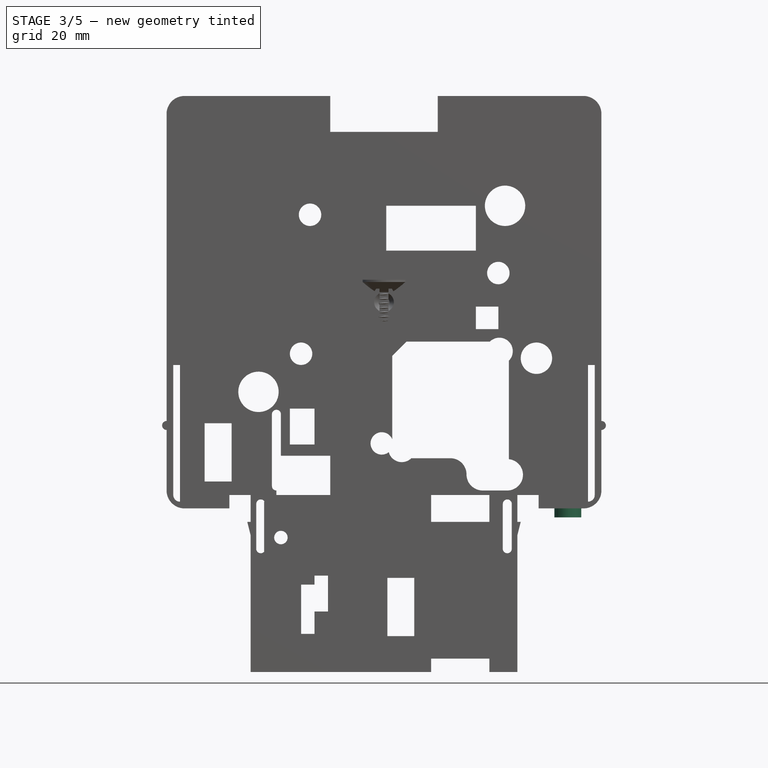
[diagram: stage 3 of 5 — front view after this stage's code; geometry added in this stage tinted green]
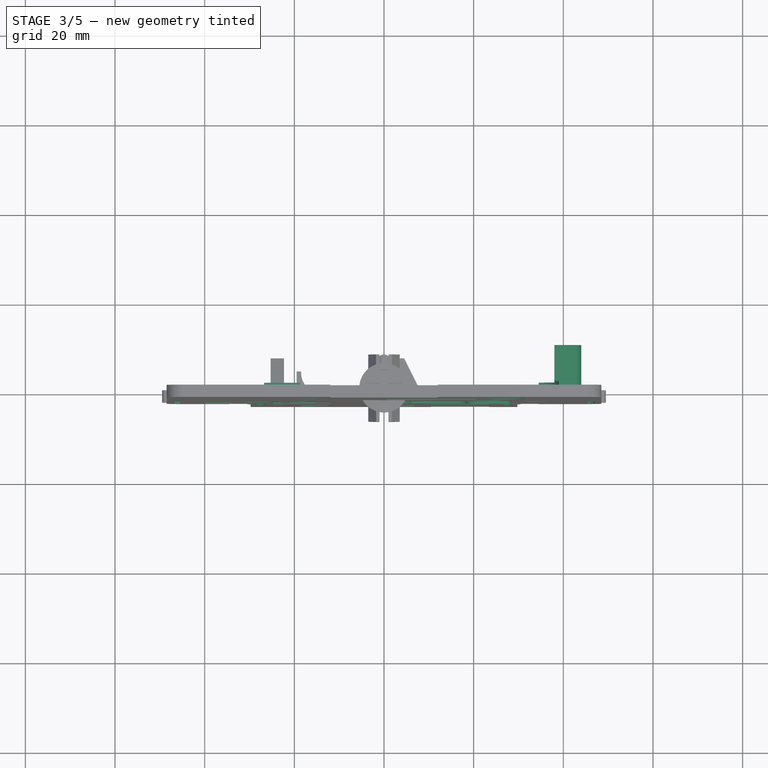
[diagram: stage 3 of 5 — top view after this stage's code; geometry added in this stage tinted green]
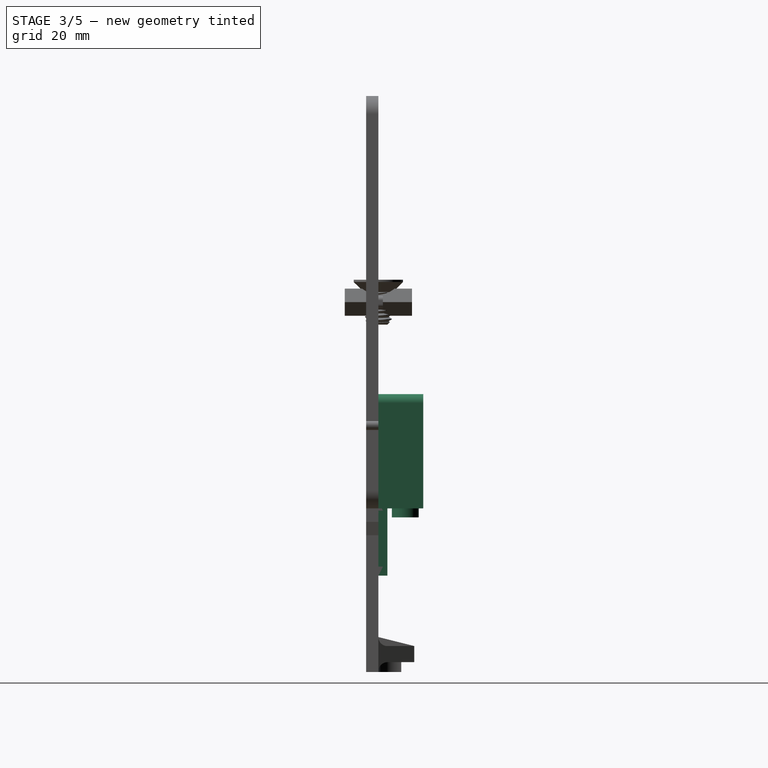
[diagram: stage 3 of 5 — right view after this stage's code; geometry added in this stage tinted green]
FEATURE [PartDesign::Pocket] Pocket005  label="Holes_Pocket"
  BaseFeature = -> Fillet029
  Direction = (0,1,-2e-16)
  Length = 5
  Length2 = 5
  Placement = pos=(0,0,0) rot=(1,0,0;1.5708rad)
  Profile = -> Sketch022
  ReferenceAxis = -> Sketch022 [N_Axis]
  SideType = 0
  Suppressed = false
  Type = 1
  Type2 = 0
FEATURE [PartDesign::Pad] Pad021  label="Airflow_base01Pad"
  BaseFeature = -> Pocket005
  Direction = (0,1,2e-16)
  Length = 2
  Length2 = 10
  Placement = pos=(0,0,0) rot=(1,0,0;1.5708rad)
  Profile = -> Sketch033
  ReferenceAxis = -> Sketch033 [N_Axis]
  SideType = 0
  Suppressed = false
  Type = 0
  Type2 = 0
FEATURE [Sketcher::SketchObject] Sketch034  label="airflow_base02"
  ArcFitTolerance = 1e-06
  AttachmentSupport = -> [Pad021]
  ExternalTypes = [0]
  FullyConstrained = true
  MakeInternals = false
  MapMode = 5
  Placement = pos=(0,2,4e-16) rot=(-1,0,0;1.5708rad)
  _ExternalGeoVersion = 0
  sketch-geometry (5):
    g0: LineSegment StartX=38 StartY=46 StartZ=0 EndX=38 EndY=20.5 EndZ=0
    g1: LineSegment StartX=38 StartY=46 StartZ=0 EndX=44 EndY=46 EndZ=0
    g2: LineSegment StartX=44 StartY=22.5 StartZ=0 EndX=44 EndY=46 EndZ=0
    g3: ArcOfCircle CenterX=42 CenterY=22.5 CenterZ=0 NormalX=0 NormalY=0 NormalZ=1 AngleXU=0 Radius=2 StartAngle=4.71239 EndAngle=6.28319
    g4: LineSegment StartX=38 StartY=20.5 StartZ=0 EndX=42 EndY=20.5 EndZ=0
  constraints (16):
    c: Vertical(g0)
    c: DistanceY(g0,g0) = 25.5
    c: Coincident(g0,g1)
    c: Vertical(g2)
    c: Coincident(g1,g2)
    c: Distance(g-2,g0) = 38
    c: DistanceX(g1,g1) = 6
    c: Horizontal(g1)
    c: Coincident(g3,g2)
    c: Coincident(g4,g0)
    c: Coincident(g4,g3)
    c: Horizontal(g4)
    c: Vertical(g3,g3)
    c: Distance(g0,g-1) = 20.5
    c: Radius(g3) = 2
    c: Horizontal(g2,g3)
FEATURE [PartDesign::Pad] Pad022  label="Airflow_Pad01"
  BaseFeature = -> Pad021
  Direction = (0,1,2e-16)
  Length = 8
  Length2 = 10
  Placement = pos=(0,0,0) rot=(1,0,0;1.5708rad)
  Profile = -> Sketch034
  ReferenceAxis = -> Sketch034 [N_Axis]
  SideType = 0
  Suppressed = false
  Type = 0
  Type2 = 0
FEATURE [Sketcher::SketchObject] Sketch035  label="airflow_OUT"
  ArcFitTolerance = 1e-06
  AttachmentSupport = -> [Pad022]
  ExternalTypes = [0]
  FullyConstrained = true
  MakeInternals = false
  MapMode = 5
  Placement = pos=(38,0,0) rot=(0.707107,0,-0.707107;3.14159rad)
  _ExternalGeoVersion = 0
  sketch-geometry (1):
    g0: Circle CenterX=24 CenterY=-6 CenterZ=0 NormalX=0 NormalY=0 NormalZ=1 AngleXU=0 Radius=2.65
  constraints (3):
    c: Distance(g0,g-1) = 6
    c: Diameter(g0) = 5.3
    c: Distance(g0,g-2) = 24
FEATURE [PartDesign::Pocket] Pocket010  label="airflow_OUT_Pocket"
  BaseFeature = -> Pad022
  Direction = (1,0,2e-16)
  Length = 5.5
  Length2 = 5
  Placement = pos=(0,0,0) rot=(1,0,0;1.5708rad)
  Profile = -> Sketch035
  ReferenceAxis = -> Sketch035 [N_Axis]
  SideType = 0
  Suppressed = false
  Type = 0
  Type2 = 0
FEATURE [PartDesign::Fillet] Fillet010  label="airflow_OUT_Fillet"
  Base = -> Pocket010 [Edge435]
  BaseFeature = -> Pocket010
  Placement = pos=(0,0,0) rot=(1,0,0;1.5708rad)
  Radius = 2.5
  SupportTransform = false
  Suppressed = false
  UseAllEdges = false
FEATURE [Sketcher::SketchObject] Sketch036  label="airflow_pipe"
  ArcFitTolerance = 1e-06
  AttachmentSupport = -> [Pad022]
  ExternalTypes = [0]
  FullyConstrained = true
  MakeInternals = false
  MapMode = 5
  Placement = pos=(0,0,-46) rot=(1,0,0;3.14159rad)
  _ExternalGeoVersion = 0
  sketch-geometry (2):
    g0: Circle CenterX=41 CenterY=-6 CenterZ=0 NormalX=0 NormalY=0 NormalZ=1 AngleXU=0 Radius=2.5
    g1: Circle CenterX=41 CenterY=-6 CenterZ=0 NormalX=0 NormalY=0 NormalZ=1 AngleXU=0 Radius=3
  constraints (5):
    c: Diameter(g0) = 5
    c: Distance(g0,g-1) = 6
    c: DistanceX(g-1,g0) = 41
    c: Coincident(g1,g0)
    c: Diameter(g1) = 6
FEATURE [PartDesign::Pocket] Pocket032  label="Airflow_Pocket032"
  BaseFeature = -> Fillet010
  Direction = (0,0,1)
  Length = 21
  Length2 = 5
  Placement = pos=(0,0,0) rot=(1,0,0;1.5708rad)
  Profile = -> Sketch036 [Edge1]
  ReferenceAxis = -> Sketch036 [N_Axis]
  Refine = true
  SideType = 0
  Suppressed = false
  Type = 0
  Type2 = 0
FEATURE [PartDesign::Pad] Pad049  label="Airflow_Pad049"
  BaseFeature = -> Pocket032
  Direction = (0,0,-1)
  Length = 2
  Length2 = 10
  Placement = pos=(0,0,0) rot=(1,0,0;1.5708rad)
  Profile = -> Sketch036
  ReferenceAxis = -> Sketch036 [N_Axis]
  Refine = true
  SideType = 0
  Suppressed = false
  Type = 0
  Type2 = 0
FEATURE [PartDesign::Pocket] Pocket012  label="Sound_sensor_hall"
  BaseFeature = -> Pad049
  Direction = (0,-1,-2e-16)
  Length = 3
  Length2 = 5
  Placement = pos=(0,0,0) rot=(1,0,0;1.5708rad)
  Profile = -> Sketch029 [Edge1]
  ReferenceAxis = -> Sketch029 [N_Axis]
  SideType = 0
  Suppressed = false
  Type = 0
  Type2 = 0
FEATURE [PartDesign::Pad] Pad063  label="Sound_sensor_01"
  BaseFeature = -> Pocket012
  Direction = (0,1,2e-16)
  Length = 1.25
  Length2 = 10
  Placement = pos=(0,0,0) rot=(1,0,0;1.5708rad)
  Profile = -> Sketch029 [Edge17,Edge6,Edge7,Edge8,Edge9,Edge10,Edge11,Edge12,Edge3,Edge2,Edge5,Edge4,Edge15,Edge16]
  ReferenceAxis = -> Sketch029 [N_Axis]
  Refine = true
  SideType = 0
  Suppressed = false
  Type = 0
  Type2 = 0
FEATURE [PartDesign::Pad] Pad064  label="Sound_sensor_02"
  BaseFeature = -> Pad063
  Direction = (0,1,2e-16)
  Length = 2
  Length2 = -1
  Placement = pos=(0,0,0) rot=(1,0,0;1.5708rad)
  Profile = -> Sketch029 [Edge13,Edge14,Edge12,Edge11,Edge10,Edge9,Edge8,Edge19,Edge18,Edge17]
  ReferenceAxis = -> Sketch029 [N_Axis]
  Refine = true
  SideType = 1
  Suppressed = false
  Type = 0
  Type2 = 0
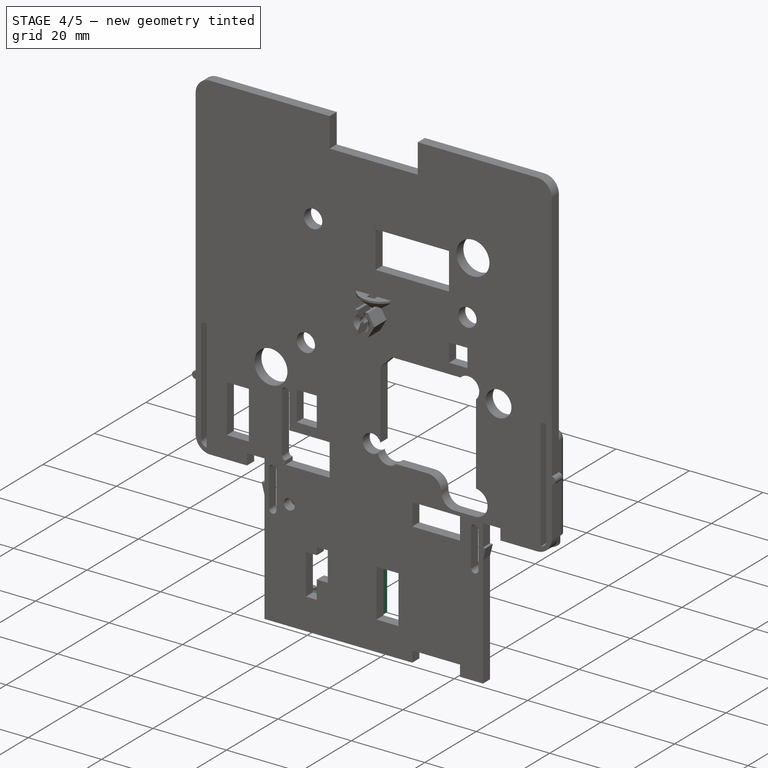
[diagram: stage 4 of 5 — iso view after this stage's code; geometry added in this stage tinted green]
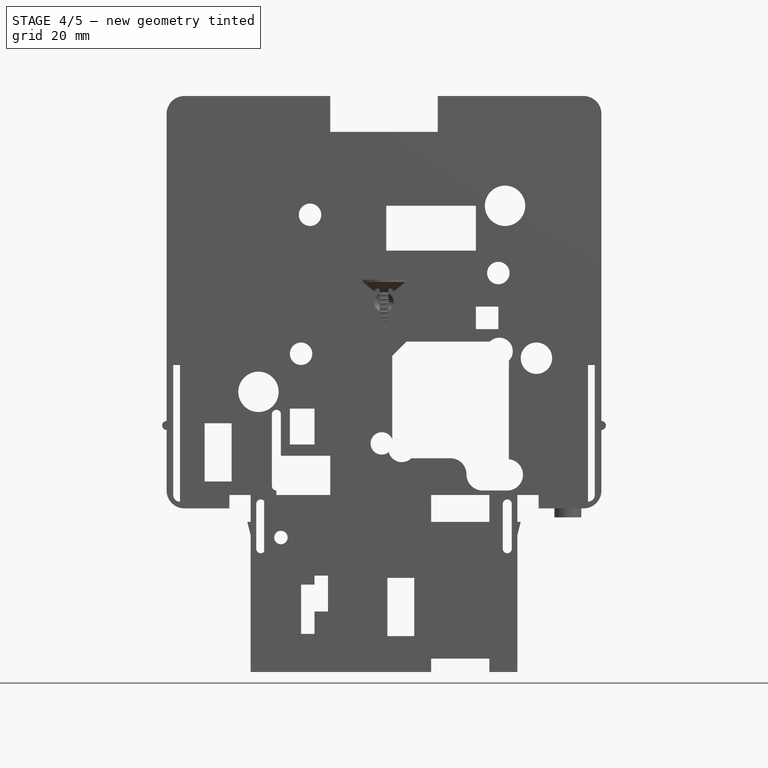
[diagram: stage 4 of 5 — front view after this stage's code; geometry added in this stage tinted green]
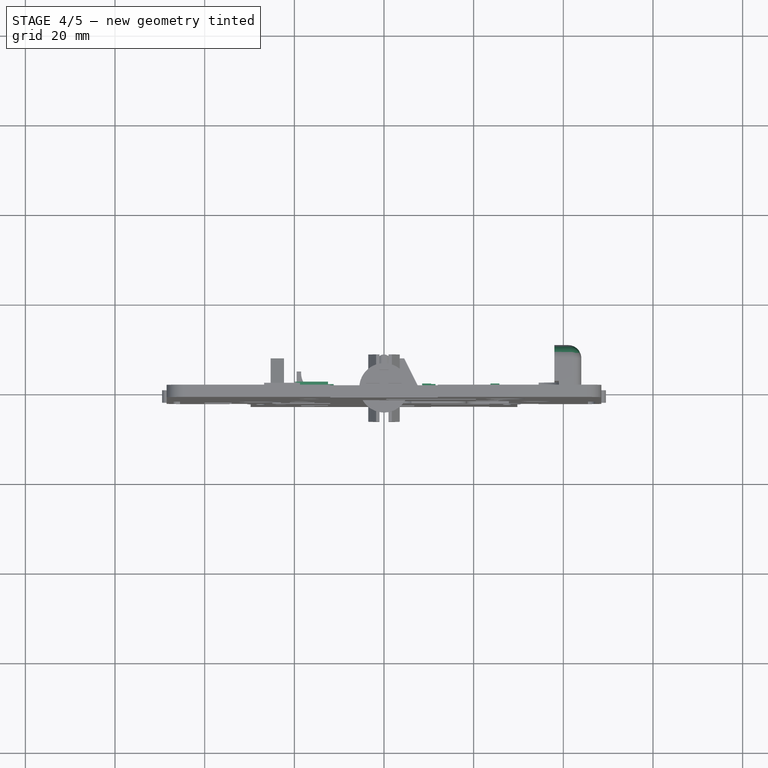
[diagram: stage 4 of 5 — top view after this stage's code; geometry added in this stage tinted green]
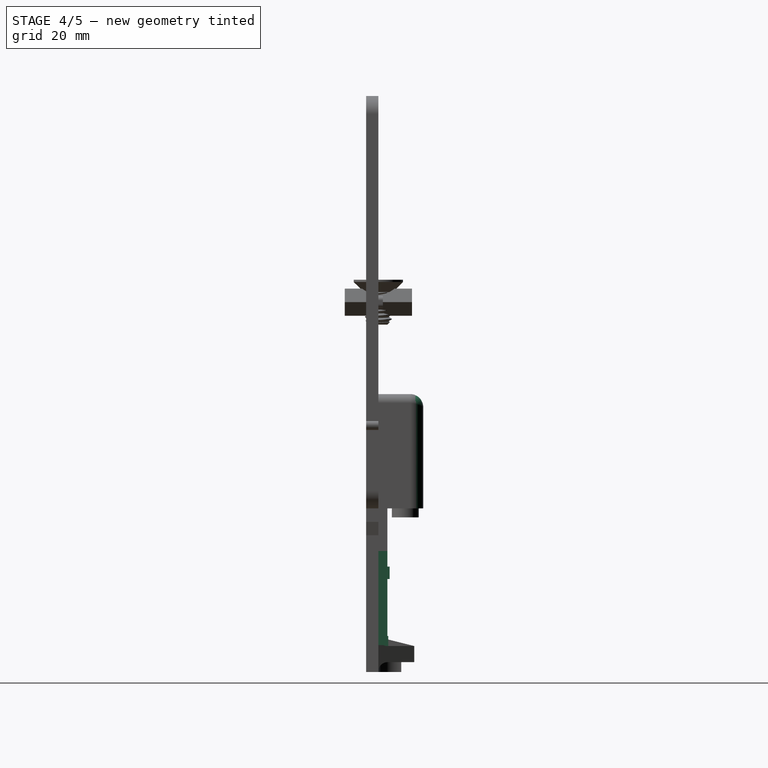
[diagram: stage 4 of 5 — right view after this stage's code; geometry added in this stage tinted green]
FEATURE [PartDesign::Chamfer] Chamfer004  label="sds011_emp004"
  Angle = 45
  Base = -> Pad064 [Edge1]
  BaseFeature = -> Pad064
  ChamferType = 0
  FlipDirection = false
  Placement = pos=(0,0,0) rot=(1,0,0;1.5708rad)
  Refine = true
  Size = 0.4
  Size2 = 1
  SupportTransform = false
  Suppressed = false
  UseAllEdges = false
FEATURE [PartDesign::Fillet] Fillet021  label="sds011_emp005"
  Base = -> Chamfer004 [Edge39,Edge38,Edge37]
  BaseFeature = -> Chamfer004
  Placement = pos=(0,0,0) rot=(1,0,0;1.5708rad)
  Radius = 2.9
  Refine = true
  SupportTransform = false
  Suppressed = false
  UseAllEdges = false
FEATURE [PartDesign::Chamfer] Chamfer001
  Angle = 45
  Base = -> Fillet021 [Edge84]
  BaseFeature = -> Fillet021
  ChamferType = 0
  FlipDirection = false
  Placement = pos=(0,0,0) rot=(1,0,0;1.5708rad)
  Refine = true
  Size = 2
  Size2 = 1
  SupportTransform = false
  Suppressed = false
  UseAllEdges = false
FEATURE [Sketcher::SketchObject] Sketch087  label="BME_Sketch087"
  ArcFitTolerance = 1e-06
  AttachmentSupport = -> [Chamfer001]
  ExternalTypes = [0]
  FullyConstrained = true
  MakeInternals = false
  MapMode = 5
  Placement = pos=(0,-3.3e-15,0) rot=(-1,0,0;1.5708rad)
  _ExternalGeoVersion = 1
  sketch-geometry (16):
    g0: LineSegment StartX=-20 StartY=61 StartZ=0 EndX=-20 EndY=59 EndZ=0
    g1: LineSegment StartX=-20 StartY=59 StartZ=0 EndX=-12.5 EndY=59 EndZ=0
    g2: LineSegment StartX=-15.5 StartY=61 StartZ=0 EndX=-20 EndY=61 EndZ=0
    g3: LineSegment StartX=-20 StartY=61 StartZ=0 EndX=-20 EndY=61.75 EndZ=0
    g4: LineSegment StartX=-20 StartY=61.75 StartZ=0 EndX=-15.5 EndY=61.75 EndZ=0
    g5: LineSegment StartX=-15.5 StartY=61.75 StartZ=0 EndX=-15.5 EndY=61 EndZ=0
    g6: LineSegment StartX=-20.25 StartY=77.25 StartZ=0 EndX=-20.25 EndY=74.25 EndZ=0
    g7: LineSegment StartX=-20.25 StartY=74.25 StartZ=0 EndX=-11.25 EndY=74.25 EndZ=0
    g8: LineSegment StartX=-11.25 StartY=74.25 StartZ=0 EndX=-11.25 EndY=77.25 EndZ=0
    g9: LineSegment StartX=-11.25 StartY=77.25 StartZ=0 EndX=-20.25 EndY=77.25 EndZ=0
    g10: LineSegment StartX=-0.25 StartY=74.25 StartZ=0 EndX=-0.25 EndY=61.75 EndZ=0
    g11: LineSegment StartX=-0.25 StartY=61.75 StartZ=0 EndX=0.75 EndY=61.75 EndZ=0
    g12: LineSegment StartX=0.75 StartY=61.75 StartZ=0 EndX=0.75 EndY=74.25 EndZ=0
    g13: LineSegment StartX=0.75 StartY=74.25 StartZ=0 EndX=-0.25 EndY=74.25 EndZ=0
    g14: LineSegment StartX=-15.5 StartY=61 StartZ=0 EndX=-12.5 EndY=61 EndZ=0
    g15: LineSegment StartX=-12.5 StartY=61 StartZ=0 EndX=-12.5 EndY=59 EndZ=0
  constraints (47):
    c: Coincident(g0,g1)
    c: Coincident(g2,g0)
    c: Vertical(g0)
    c: Horizontal(g1)
    c: Horizontal(g2)
    c: Coincident(g0,g3)
    c: Vertical(g3)
    c: Coincident(g3,g4)
    c: Horizontal(g4)
    c: Coincident(g4,g5)
    c: Vertical(g5)
    c: Coincident(g2,g5)
    c: Coincident(g6,g7)
    c: Coincident(g7,g8)
    c: Coincident(g8,g9)
    c: Coincident(g9,g6)
    c: Vertical(g6)
    c: Vertical(g8)
    c: Horizontal(g7)
    c: Horizontal(g9)
    c: Distance(g7,g2) = 13.25
    c: Distance(g-1,g1) = 59
    c: DistanceY(g1,g2) = 2
    c: DistanceY(g5,g5) = 0.75
    c: DistanceX(g7,g7) = 9
    c: DistanceY(g8,g8) = 3
    c: Coincident(g10,g11)
    c: Coincident(g11,g12)
    c: Coincident(g12,g13)
    c: Coincident(g13,g10)
    c: Vertical(g10)
    c: Vertical(g12)
    c: Horizontal(g11)
    c: Horizontal(g13)
    c: DistanceX(g13,g13) = 1
    c: DistanceX(g7,g10) = 11
    c: Horizontal(g10,g4)
    c: Horizontal(g7,g10)
    c: Distance(g-2,g8) = 11.25
    c: Distance(g-2,g5) = 15.5
    c: DistanceX(g4,g4) = 4.5
    c: Coincident(g14,g2)
    c: Horizontal(g14)
    c: Coincident(g15,g14)
    c: Coincident(g15,g1)
    c: Vertical(g15)
    c: DistanceX(g14,g14) = 3
FEATURE [PartDesign::Pad] Pad073  label="BME_Pad073"
  BaseFeature = -> Chamfer001
  Direction = (0,1,2e-16)
  Length = 1.4
  Length2 = 10
  Placement = pos=(0,0,0) rot=(1,0,0;1.5708rad)
  Profile = -> Sketch087 [Edge10,Edge9,Edge12,Edge11,Edge13,Edge15,Edge14,Edge16,Edge7,Edge6,Edge5,Edge4,Edge8]
  ReferenceAxis = -> Sketch087 [N_Axis]
  Refine = true
  SideType = 0
  Suppressed = false
  Type = 0
  Type2 = 0
FEATURE [PartDesign::Pad] Pad072  label="BME_Pad072"
  BaseFeature = -> Pad073
  Direction = (0,1,2e-16)
  Length = 1
  Length2 = 10
  Placement = pos=(0,0,0) rot=(1,0,0;1.5708rad)
  Profile = -> Sketch087 [Edge13,Edge16,Edge15,Edge14]
  ReferenceAxis = -> Sketch087 [N_Axis]
  Refine = true
  SideType = 0
  Suppressed = false
  Type = 0
  Type2 = 0
FEATURE [Sketcher::SketchObject] Sketch088  label="BME_Sketch088"
  ArcFitTolerance = 1e-06
  AttachmentSupport = -> [Pad072]
  ExternalTypes = [0]
  FullyConstrained = true
  MakeInternals = false
  MapMode = 5
  Placement = pos=(-11.25,0,0) rot=(0.707107,0,0.707107;3.14159rad)
  _ExternalGeoVersion = 1
  sketch-geometry (4):
    g0: LineSegment StartX=-77.5 StartY=-1.2 StartZ=0 EndX=-74.1 EndY=-1.2 EndZ=0
    g1: LineSegment StartX=-74.1 StartY=-1.2 StartZ=0 EndX=-74.5 EndY=-2.2 EndZ=0
    g2: LineSegment StartX=-74.5 StartY=-2.2 StartZ=0 EndX=-77.5 EndY=-2.2 EndZ=0
    g3: LineSegment StartX=-77.5 StartY=-2.2 StartZ=0 EndX=-77.5 EndY=-1.2 EndZ=0
  constraints (12):
    c: Horizontal(g0)
    c: Coincident(g0,g1)
    c: Coincident(g1,g2)
    c: Horizontal(g2)
    c: Coincident(g2,g3)
    c: Coincident(g3,g0)
    c: Vertical(g3)
    c: DistanceX(g2,g2) = 3
    c: Distance(g-2,g3) = 77.5
    c: DistanceX(g0,g0) = 3.4
    c: Distance(g-1,g0) = 1.2
    c: DistanceY(g3,g3) = 1
FEATURE [PartDesign::Pad] Pad074  label="BME_Pad074"
  BaseFeature = -> Pad072
  Direction = (1,0,-2e-16)
  Length = 4
  Length2 = 10
  Placement = pos=(0,0,0) rot=(1,0,0;1.5708rad)
  Profile = -> Sketch088
  ReferenceAxis = -> Sketch088 [N_Axis]
  Refine = true
  Reversed = true
  SideType = 0
  Suppressed = false
  Type = 0
  Type2 = 0
FEATURE [Sketcher::SketchObject] Sketch090
  ArcFitTolerance = 1e-06
  AttachmentSupport = -> [Pocket005]
  ExternalTypes = [0]
  FullyConstrained = true
  MakeInternals = false
  MapMode = 5
  Placement = pos=(0,-3.3e-15,0) rot=(-1,0,0;1.5708rad)
  _ExternalGeoVersion = 1
  sketch-geometry (13):
    g0: LineSegment StartX=10.5 StartY=62 StartZ=0 EndX=10.5 EndY=70 EndZ=0
    g1: LineSegment StartX=8.5 StartY=76.5 StartZ=0 EndX=8.5 EndY=55.5 EndZ=0
    g2: LineSegment StartX=10.5 StartY=70 StartZ=0 EndX=11.5 EndY=70 EndZ=0
    g3: LineSegment StartX=11.5 StartY=70 StartZ=0 EndX=11.5 EndY=62 EndZ=0
    g4: LineSegment StartX=11.5 StartY=62 StartZ=0 EndX=10.5 EndY=62 EndZ=0
    g5: LineSegment StartX=8.5 StartY=76.5 StartZ=0 EndX=10.5 EndY=76.5 EndZ=0
    g6: LineSegment StartX=8.5 StartY=55.5 StartZ=0 EndX=10.5 EndY=55.5 EndZ=0
    g7: LineSegment StartX=10.5 StartY=55.5 StartZ=0 EndX=10.5 EndY=62 EndZ=0
    g8: LineSegment StartX=10.5 StartY=70 StartZ=0 EndX=10.5 EndY=76.5 EndZ=0
    g9: LineSegment StartX=23.75 StartY=76.5 StartZ=0 EndX=23.75 EndY=55.5 EndZ=0
    g10: LineSegment StartX=23.75 StartY=55.5 StartZ=0 EndX=25.75 EndY=55.5 EndZ=0
    g11: LineSegment StartX=25.75 StartY=55.5 StartZ=0 EndX=25.75 EndY=76.5 EndZ=0
    g12: LineSegment StartX=25.75 StartY=76.5 StartZ=0 EndX=23.75 EndY=76.5 EndZ=0
  constraints (38):
    c: Vertical(g0)
    c: Vertical(g1)
    c: DistanceX(g1,g0) = 2
    c: Distance(g-2,g1) = 8.5
    c: Coincident(g0,g2)
    c: Horizontal(g2)
    c: Coincident(g2,g3)
    c: Vertical(g3)
    c: Coincident(g3,g4)
    c: Coincident(g4,g0)
    c: Horizontal(g4)
    c: DistanceX(g2,g2) = 1
    c: DistanceY(g3,g3) = 8
    c: Distance(g-1,g4) = 62
    c: Coincident(g5,g1)
    c: Horizontal(g5)
    c: Coincident(g1,g6)
    c: Horizontal(g6)
    c: Coincident(g6,g7)
    c: Coincident(g7,g0)
    c: Vertical(g7)
    c: Coincident(g0,g8)
    c: Coincident(g8,g5)
    c: Vertical(g8)
    c: Equal(g7,g8)
    c: DistanceY(g1,g1) = 21
    c: Coincident(g9,g10)
    c: Coincident(g10,g11)
    c: Coincident(g11,g12)
    c: Coincident(g12,g9)
    c: Vertical(g9)
    c: Vertical(g11)
    c: Horizontal(g10)
    c: Horizontal(g12)
    c: DistanceX(g12,g12) = 2
    c: Distance(g9,g8) = 13.25
    c: Horizontal(g9,g6)
    c: Horizontal(g5,g9)
FEATURE [PartDesign::Pad] Pad069
  BaseFeature = -> Pad074
  Direction = (0,1,2e-16)
  Length = 2
  Length2 = 10
  Placement = pos=(0,0,0) rot=(1,0,0;1.5708rad)
  Profile = -> Sketch090 [Edge12,Edge13,Edge10,Edge11,Edge5,Edge6,Edge1,Edge2,Edge3,Edge4]
  ReferenceAxis = -> Sketch090 [N_Axis]
  Refine = true
  SideType = 0
  Suppressed = false
  Type = 0
  Type2 = 0
FEATURE [PartDesign::Pad] Pad070
  BaseFeature = -> Pad069
  Direction = (0,1,2e-16)
  Length = 2
  Length2 = -1
  Placement = pos=(0,0,0) rot=(1,0,0;1.5708rad)
  Profile = -> Sketch090 [Edge8,Edge7,Edge6,Edge9]
  ReferenceAxis = -> Sketch090 [N_Axis]
  Refine = true
  SideType = 1
  Suppressed = false
  Type = 0
  Type2 = 0
FEATURE [Sketcher::SketchObject] Sketch091
  ArcFitTolerance = 1e-06
  AttachmentSupport = -> [Pad070]
  ExternalTypes = [0]
  FullyConstrained = true
  MakeInternals = false
  MapMode = 5
  Placement = pos=(0,0,-76.5) rot=(1,0,0;3.14159rad)
  _ExternalGeoVersion = 1
  sketch-geometry (3):
    g0: LineSegment StartX=23.75 StartY=-2 StartZ=0 EndX=23.75 EndY=-1 EndZ=0
    g1: LineSegment StartX=23.75 StartY=-1 StartZ=0 EndX=23.35 EndY=-1 EndZ=0
    g2: LineSegment StartX=23.35 StartY=-1 StartZ=0 EndX=23.75 EndY=-2 EndZ=0
  constraints (9):
    c: Vertical(g0)
    c: Coincident(g0,g1)
    c: Horizontal(g1)
    c: Coincident(g1,g2)
    c: Coincident(g2,g0)
    c: DistanceY(g0,g0) = 1
    c: DistanceX(g1,g1) = 0.4
    c: Distance(g-1,g1) = 1
    c: Distance(g0,g-2) = 23.75
FEATURE [PartDesign::Pad] Pad071
  BaseFeature = -> Pad070
  Direction = (0,0,-1)
  Length = 13
  Length2 = -8
  Placement = pos=(0,0,0) rot=(1,0,0;1.5708rad)
  Profile = -> Sketch091
  ReferenceAxis = -> Sketch091 [N_Axis]
  Refine = true
  Reversed = true
  SideType = 1
  Suppressed = false
  Type = 0
  Type2 = 0
FEATURE [PartDesign::Pad] Pad075
  BaseFeature = -> Pad071
  Direction = (0,1,2e-16)
  Length = 2.5
  Length2 = -1.4
  Placement = pos=(0,0,0) rot=(1,0,0;1.5708rad)
  Profile = -> Sketch087 [Edge7,Edge8,Edge3,Edge2,Edge1,Edge5,Edge6]
  ReferenceAxis = -> Sketch087 [N_Axis]
  Refine = true
  SideType = 1
  Suppressed = false
  Type = 0
  Type2 = 0
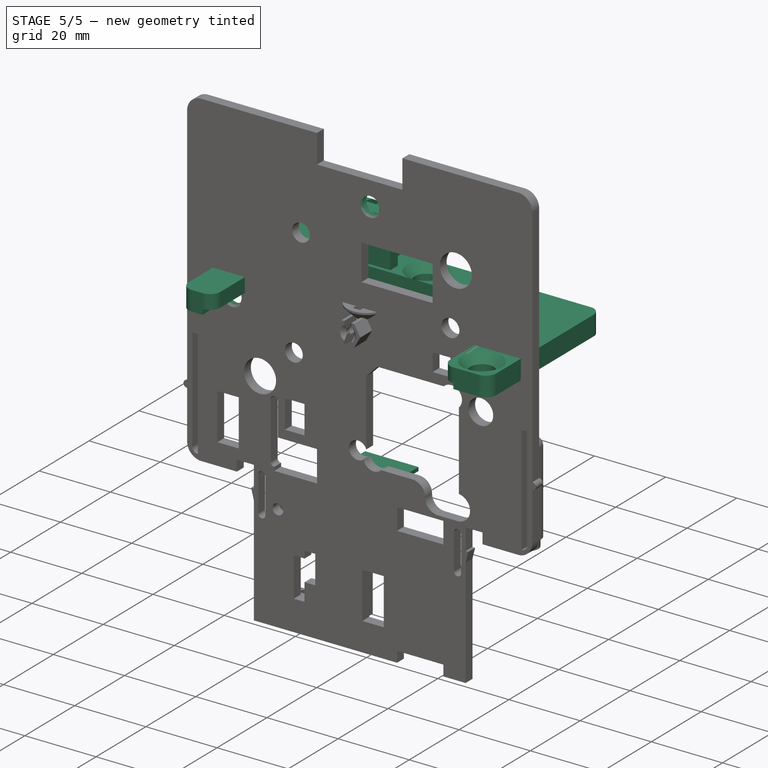
[diagram: stage 5 of 5 — iso view after this stage's code; geometry added in this stage tinted green]
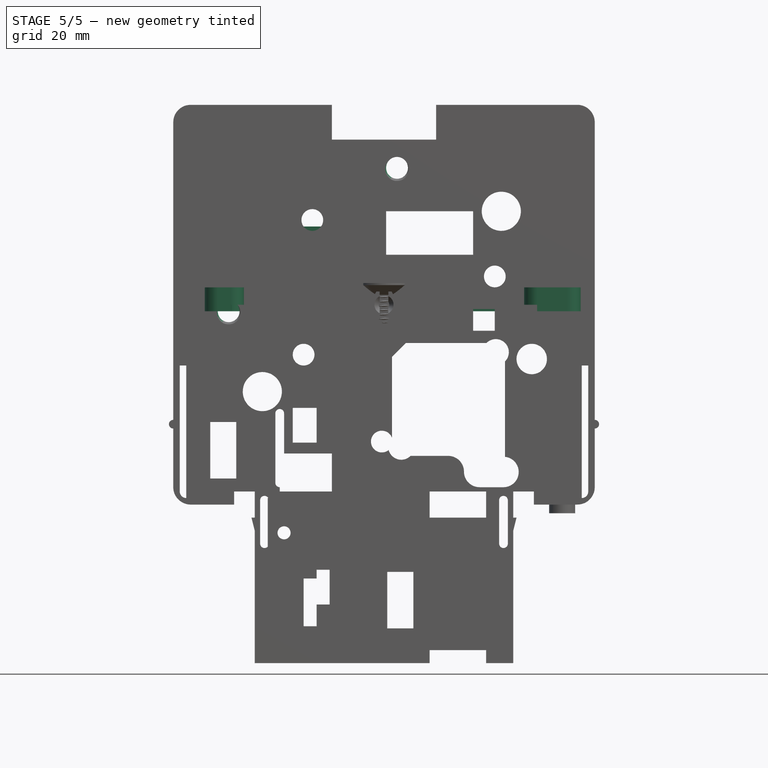
[diagram: stage 5 of 5 — front view after this stage's code; geometry added in this stage tinted green]
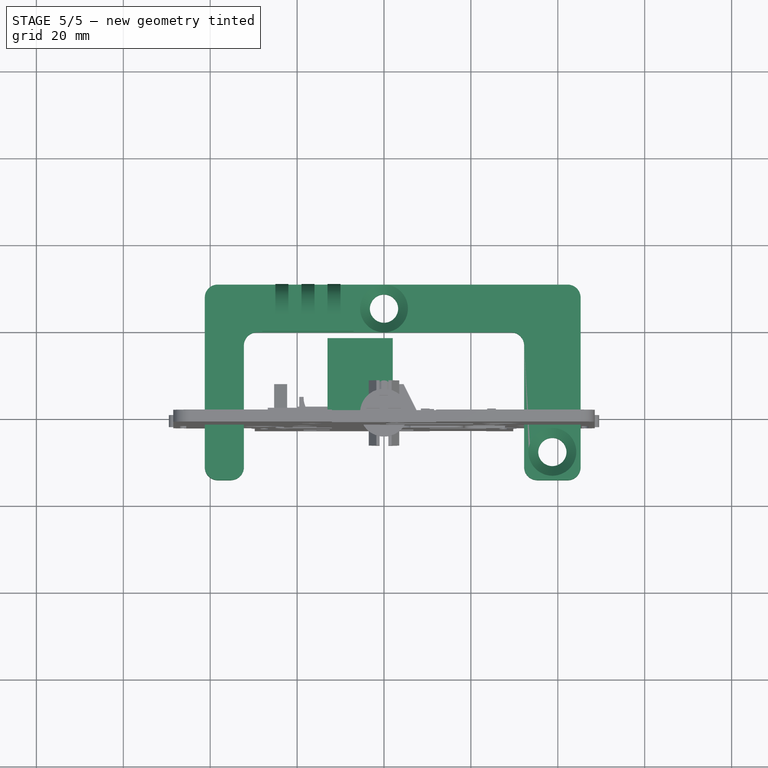
[diagram: stage 5 of 5 — top view after this stage's code; geometry added in this stage tinted green]
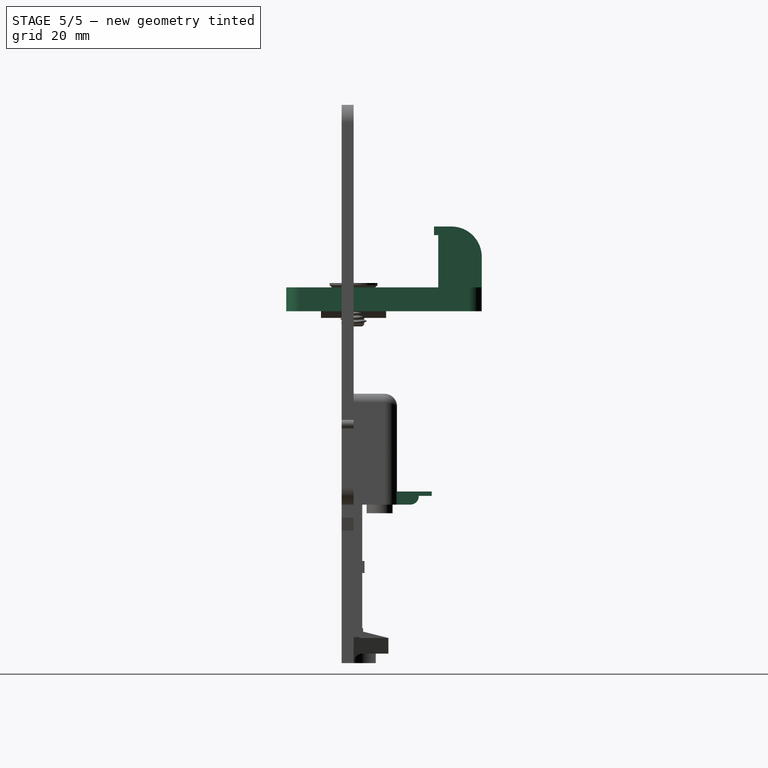
[diagram: stage 5 of 5 — right view after this stage's code; geometry added in this stage tinted green]
FEATURE [App::Point] Origin001
  Role = Origin
FEATURE [Sketcher::SketchObject] Sketch
  ArcFitTolerance = 1e-06
  AttachmentSupport = -> [Origin]
  ExternalTypes = [0]
  FullyConstrained = true
  MakeInternals = false
  MapMode = 5
  _ExternalGeoVersion = 1
  sketch-geometry (27):
    g0: LineSegment StartX=-35.25 StartY=-15.5 StartZ=0 EndX=-35.25 EndY=15.5 EndZ=0
    g1: LineSegment StartX=-31.25 StartY=19.5 StartZ=0 EndX=31.25 EndY=19.5 EndZ=0
    g2: LineSegment StartX=35.25 StartY=15.5 StartZ=0 EndX=35.25 EndY=-15.5 EndZ=0
    g3: ArcOfCircle CenterX=-31.25 CenterY=15.5 CenterZ=0 NormalX=0 NormalY=0 NormalZ=1 AngleXU=0 Radius=4 StartAngle=1.5708 EndAngle=3.14159
    g4: ArcOfCircle CenterX=31.25 CenterY=15.5 CenterZ=0 NormalX=0 NormalY=0 NormalZ=1 AngleXU=0 Radius=4 StartAngle=0 EndAngle=1.5708
    g5: LineSegment StartX=-29.25 StartY=18.5 StartZ=0 EndX=29.25 EndY=18.5 EndZ=0
    g6: LineSegment StartX=-32.25 StartY=-12.5 StartZ=0 EndX=-32.25 EndY=15.5 EndZ=0
    g7: LineSegment StartX=32.25 StartY=-12.5 StartZ=0 EndX=32.25 EndY=15.5 EndZ=0
    g8: ArcOfCircle CenterX=29.25 CenterY=15.5 CenterZ=0 NormalX=0 NormalY=0 NormalZ=1 AngleXU=0 Radius=3 StartAngle=1e-16 EndAngle=1.5708
    g9: ArcOfCircle CenterX=-29.25 CenterY=15.5 CenterZ=0 NormalX=0 NormalY=0 NormalZ=1 AngleXU=0 Radius=3 StartAngle=1.5708 EndAngle=3.14159
    g10: ArcOfCircle CenterX=35.25 CenterY=-12.5 CenterZ=0 NormalX=0 NormalY=0 NormalZ=1 AngleXU=0 Radius=3 StartAngle=3.14159 EndAngle=4.71239
    g11: ArcOfCircle CenterX=-35.25 CenterY=-12.5 CenterZ=0 NormalX=0 NormalY=0 NormalZ=1 AngleXU=0 Radius=3 StartAngle=4.71239 EndAngle=6.28319
    g12: LineSegment StartX=-41.25 StartY=26.5 StartZ=0 EndX=-41.25 EndY=-12.5 EndZ=0
    g13: LineSegment StartX=45.25 StartY=26.5 StartZ=0 EndX=45.25 EndY=-12.5 EndZ=0
    g14: LineSegment StartX=-38.25 StartY=29.5 StartZ=0 EndX=42.25 EndY=29.5 EndZ=0
    g15: LineSegment StartX=35.25 StartY=-15.5 StartZ=0 EndX=42.25 EndY=-15.5 EndZ=0
    g16: ArcOfCircle CenterX=42.25 CenterY=-12.5 CenterZ=0 NormalX=0 NormalY=0 NormalZ=1 AngleXU=0 Radius=3 StartAngle=4.71239 EndAngle=6.28319
    g17: ArcOfCircle CenterX=42.25 CenterY=26.5 CenterZ=0 NormalX=0 NormalY=0 NormalZ=1 AngleXU=0 Radius=3 StartAngle=0 EndAngle=1.5708
    g18: ArcOfCircle CenterX=-38.25 CenterY=26.5 CenterZ=0 NormalX=0 NormalY=0 NormalZ=1 AngleXU=0 Radius=3 StartAngle=1.5708 EndAngle=3.14159
    g19: LineSegment StartX=-35.25 StartY=-15.5 StartZ=0 EndX=-38.25 EndY=-15.5 EndZ=0
    g20: ArcOfCircle CenterX=-38.25 CenterY=-12.5 CenterZ=0 NormalX=0 NormalY=0 NormalZ=1 AngleXU=0 Radius=3 StartAngle=3.14159 EndAngle=4.71239
    g21: Circle CenterX=38.75 CenterY=-9 CenterZ=0 NormalX=0 NormalY=0 NormalZ=1 AngleXU=0 Radius=3.25
    g22: Circle CenterX=0 CenterY=24 CenterZ=0 NormalX=0 NormalY=0 NormalZ=1 AngleXU=0 Radius=3.25
    g23: GeomPoint [constr] X=32.25 Y=-9 Z=0
    g24: GeomPoint [constr] X=45.25 Y=-9 Z=0
    g25: GeomPoint [constr] X=0 Y=29.5 Z=0
    g26: GeomPoint [constr] X=0 Y=18.5 Z=0
  constraints (81):
    c: Vertical(g2)
    c: Coincident(g3,g0)
    c: Coincident(g3,g1)
    c: Coincident(g4,g1)
    c: Coincident(g4,g2)
    c: Radius(g4) = 4
    c: Equal(g3,g4)
    c: Horizontal(g0,g3)
    c: Horizontal(g4,g2)
    c: Vertical(g1,g4)
    c: Vertical(g1,g3)
    c: Symmetric(g1,g1,g-2)
    c: Distance(g2,g1) = 35
    c: Horizontal(g5)
    c: Distance(g1,g5) = 1
    c: Vertical(g6)
    c: Vertical(g7)
    c: Symmetric(g7,g6,g-2)
    c: Distance(g2,g7) = 3
    c: Coincident(g8,g7)
    c: Coincident(g8,g5)
    c: Coincident(g9,g6)
    c: Coincident(g9,g5)
    c: Horizontal(g6,g9)
    c: Vertical(g5,g9)
    c: Vertical(g8,g5)
    c: Horizontal(g7,g8)
    c: Equal(g8,g9)
    c: Radius(g8) = 3
    c: PointOnObject(g10,g2)
    c: Coincident(g10,g7)
    c: Coincident(g10,g2)
    c: PointOnObject(g11,g0)
    c: Coincident(g11,g6)
    c: Coincident(g11,g0)
    c: Vertical(g12)
    c: Vertical(g13)
    c: Horizontal(g14)
    c: Distance(g14,g1) = 10
    c: Distance(g0,g12) = 6
    c: Distance(g13,g2) = 10
    c: Coincident(g2,g15)
    c: Horizontal(g15)
    c: Coincident(g16,g15)
    c: Coincident(g16,g13)
    c: Coincident(g17,g14)
    c: Coincident(g17,g13)
    c: Coincident(g18,g12)
    c: Coincident(g19,g0)
    c: Horizontal(g19)
    c: Coincident(g20,g12)
    c: Coincident(g20,g19)
    c: Equal(g20,g16)
    c: Equal(g16,g17)
    c: Equal(g17,g18)
    c: Equal(g10,g16)
    c: Horizontal(g7,g10)
    c: Horizontal(g6,g11)
    c: Horizontal(g12,g20)
    c: Vertical(g20,g19)
    c: Coincident(g14,g18)
    c: Vertical(g18,g14)
    c: Horizontal(g12,g18)
    c: Vertical(g14,g17)
    c: Horizontal(g13,g17)
    c: Horizontal(g16,g13)
    c: Vertical(g16,g15)
    c: Symmetric(g0,g0,g-1)
    c: Distance(g2,g0) = 70.5
    c: Diameter(g21) = 6.5
    c: PointOnObject(g22,g-2)
    c: PointOnObject(g23,g7)
    c: PointOnObject(g24,g13)
    c: Symmetric(g23,g24,g21)
    c: Equal(g22,g21)
    c: Horizontal(g24,g23)
    c: Distance(g21,g-1) = 9
    c: PointOnObject(g25,g14)
    c: PointOnObject(g26,g5)
    c: Symmetric(g25,g26,g22)
    c: Vertical(g25,g26)
FEATURE [PartDesign::Pad] Pad
  Direction = (0,0,1)
  Length = 1.5
  Length2 = 10
  Profile = -> Sketch [Edge22,Edge23,Edge10,Edge11,Edge12,Edge13,Edge14,Edge1,Edge2,Edge3,Edge4,Edge5,Edge6,Edge7,Edge8,Edge9]
  ReferenceAxis = -> Sketch [N_Axis]
  Refine = true
  Reversed = true
  SideType = 0
  Suppressed = false
  Type = 0
  Type2 = 0
FEATURE [PartDesign::Pad] Pad001
  BaseFeature = -> Pad
  Direction = (0,0,1)
  Length = 4
  Length2 = 10
  Profile = -> Sketch [Edge8,Edge7,Edge6,Edge21,Edge20,Edge19,Edge18,Edge17,Edge16,Edge15,Edge14,Edge13,Edge12,Edge11,Edge10,Edge9,Edge23,Edge22]
  ReferenceAxis = -> Sketch [N_Axis]
  Refine = true
  SideType = 0
  Suppressed = false
  Type = 0
  Type2 = 0
FEATURE [PartDesign::Chamfer] Chamfer
  Angle = 45
  Base = -> Pad001 [Edge17,Edge18]
  BaseFeature = -> Pad001
  ChamferType = 0
  FlipDirection = false
  Refine = true
  Size = 2.25
  Size2 = 1
  SupportTransform = false
  Suppressed = false
  UseAllEdges = false
FEATURE [Sketcher::SketchObject] Sketch092
  ArcFitTolerance = 1e-06
  AttachmentSupport = -> [Pad010]
  ExternalTypes = [0]
  FullyConstrained = true
  MakeInternals = false
  MapMode = 5
  Placement = pos=(0,-3.3e-15,0) rot=(-1,0,0;1.5708rad)
  _ExternalGeoVersion = 1
  sketch-geometry (4):
    g0: GeomPoint X=-35.75 Y=1.5 Z=0
    g1: GeomPoint X=3 Y=-31.5 Z=0
    g2: Circle [constr] CenterX=3 CenterY=-31.5 CenterZ=0 NormalX=0 NormalY=0 NormalZ=1 AngleXU=0 Radius=3.25
    g3: Circle [constr] CenterX=-35.75 CenterY=1.5 CenterZ=0 NormalX=0 NormalY=0 NormalZ=1 AngleXU=0 Radius=3.25
  constraints (8):
    c: Distance(g0,g-1) = 1.5
    c: Distance(g1,g-2) = 3
    c: DistanceY(g1,g-1) = 31.5
    c: Diameter(g2) = 6.5
    c: Coincident(g2,g1)
    c: Coincident(g3,g0)
    c: Equal(g2,g3)
    c: DistanceX(g0,g1) = 38.75
FEATURE [PartDesign::Hole] Hole
  BaseFeature = -> Pad075
  BaseProfileType = 7
  CustomThreadClearance = 0
  Depth = 328.664
  DepthType = 1
  Diameter = 5.026
  DrillForDepth = false
  DrillPoint = 1
  DrillPointAngle = 118
  HoleCutCountersinkAngle = 90
  HoleCutCustomValues = false
  HoleCutDepth = 3.375
  HoleCutDiameter = 6.75
  HoleCutType = 2
  ModelThread = true
  Placement = pos=(0,0,0) rot=(1,0,0;1.5708rad)
  Profile = -> Sketch092 [Vertex1,Vertex2]
  Refine = true
  Suppressed = false
  Tapered = false
  TaperedAngle = 90
  ThreadClass = 0
  ThreadDepth = 328.664
  ThreadDepthType = 0
  ThreadDiameter = 6
  ThreadDirection = 0
  ThreadFit = 0
  ThreadSize = 14
  ThreadType = 1
  Threaded = true
  UseCustomThreadClearance = false
FEATURE [Sketcher::SketchObject] Sketch093
  ArcFitTolerance = 1e-06
  AttachmentSupport = -> [Pad]
  ExternalTypes = [0]
  FullyConstrained = true
  MakeInternals = false
  MapMode = 5
  _ExternalGeoVersion = 1
  sketch-geometry (16):
    g0: LineSegment StartX=-28 StartY=22.5 StartZ=0 EndX=-28 EndY=19.5 EndZ=0
    g1: LineSegment StartX=-28 StartY=19.5 StartZ=0 EndX=-7 EndY=19.5 EndZ=0
    g2: LineSegment StartX=-7 StartY=19.5 StartZ=0 EndX=-7 EndY=22.5 EndZ=0
    g3: LineSegment StartX=-7 StartY=22.5 StartZ=0 EndX=-10 EndY=22.5 EndZ=0
    g4: LineSegment StartX=-10 StartY=22.5 StartZ=0 EndX=-10 EndY=29.5 EndZ=0
    g5: LineSegment StartX=-10 StartY=29.5 StartZ=0 EndX=-13 EndY=29.5 EndZ=0
    g6: LineSegment StartX=-13 StartY=29.5 StartZ=0 EndX=-13 EndY=22.5 EndZ=0
    g7: LineSegment StartX=-13 StartY=22.5 StartZ=0 EndX=-16 EndY=22.5 EndZ=0
    g8: LineSegment StartX=-16 StartY=22.5 StartZ=0 EndX=-16 EndY=29.5 EndZ=0
    g9: LineSegment StartX=-16 StartY=29.5 StartZ=0 EndX=-19 EndY=29.5 EndZ=0
    g10: LineSegment StartX=-19 StartY=29.5 StartZ=0 EndX=-19 EndY=22.5 EndZ=0
    g11: LineSegment StartX=-19 StartY=22.5 StartZ=0 EndX=-22 EndY=22.5 EndZ=0
    g12: LineSegment StartX=-22 StartY=22.5 StartZ=0 EndX=-22 EndY=29.5 EndZ=0
    g13: LineSegment StartX=-22 StartY=29.5 StartZ=0 EndX=-25 EndY=29.5 EndZ=0
    g14: LineSegment StartX=-25 StartY=29.5 StartZ=0 EndX=-25 EndY=22.5 EndZ=0
    g15: LineSegment StartX=-25 StartY=22.5 StartZ=0 EndX=-28 EndY=22.5 EndZ=0
  constraints (48):
    c: Vertical(g0)
    c: Coincident(g0,g1)
    c: Horizontal(g1)
    c: Coincident(g1,g2)
    c: Vertical(g2)
    c: Coincident(g2,g3)
    c: Horizontal(g3)
    c: Coincident(g3,g4)
    c: Vertical(g4)
    c: Coincident(g4,g5)
    c: Horizontal(g5)
    c: Coincident(g5,g6)
    c: Vertical(g6)
    c: Coincident(g6,g7)
    c: Horizontal(g7)
    c: Coincident(g7,g8)
    c: Vertical(g8)
    c: Coincident(g8,g9)
    c: Horizontal(g9)
    c: Coincident(g9,g10)
    c: Vertical(g10)
    c: Coincident(g10,g11)
    c: Horizontal(g11)
    c: Coincident(g11,g12)
    c: Vertical(g12)
    c: Coincident(g12,g13)
    c: Horizontal(g13)
    c: Coincident(g13,g14)
    c: Vertical(g14)
    c: Coincident(g14,g15)
    c: Coincident(g15,g0)
    c: Horizontal(g15)
    c: Horizontal(g14,g11)
    c: Horizontal(g10,g7)
    c: Horizontal(g6,g3)
    c: Equal(g15,g13)
    c: Equal(g13,g11)
    c: Equal(g11,g9)
    c: Equal(g9,g7)
    c: Equal(g7,g5)
    c: Equal(g5,g3)
    c: Equal(g3,g2)
    c: Horizontal(g12,g9)
    c: Horizontal(g8,g5)
    c: Distance(g1,g5) = 10
    c: Distance(g2,g2) = 3
    c: Distance(g-1,g1) = 19.5
    c: Distance(g-2,g2) = 7
FEATURE [PartDesign::Pad] Pad076
  BaseFeature = -> Chamfer
  Direction = (0,0,1)
  Length = 18
  Length2 = 10
  Profile = -> Sketch093
  ReferenceAxis = -> Sketch093 [N_Axis]
  Refine = true
  SideType = 0
  Suppressed = false
  Type = 0
  Type2 = 0
FEATURE [Sketcher::SketchObject] Sketch094
  ArcFitTolerance = 1e-06
  AttachmentSupport = -> [Pad076]
  ExternalTypes = [0]
  FullyConstrained = true
  MakeInternals = false
  MapMode = 5
  Placement = pos=(0,19.5,0) rot=(1,0,0;1.5708rad)
  _ExternalGeoVersion = 1
  sketch-geometry (4):
    g0: LineSegment StartX=-28 StartY=18 StartZ=0 EndX=-28 EndY=16 EndZ=0
    g1: LineSegment StartX=-28 StartY=16 StartZ=0 EndX=-7 EndY=16 EndZ=0
    g2: LineSegment StartX=-7 StartY=16 StartZ=0 EndX=-7 EndY=18 EndZ=0
    g3: LineSegment StartX=-7 StartY=18 StartZ=0 EndX=-28 EndY=18 EndZ=0
  constraints (12):
    c: Coincident(g0,g1)
    c: Coincident(g1,g2)
    c: Coincident(g2,g3)
    c: Coincident(g3,g0)
    c: Vertical(g0)
    c: Vertical(g2)
    c: Horizontal(g1)
    c: Horizontal(g3)
    c: Distance(g0,g2) = 21
    c: Distance(g1,g3) = 2
    c: Distance(g-2,g2) = 7
    c: Distance(g-1,g1) = 16
FEATURE [PartDesign::Pad] Pad077
  BaseFeature = -> Pad076
  Direction = (0,-1,2e-16)
  Length = 1
  Length2 = 10
  Profile = -> Sketch094
  ReferenceAxis = -> Sketch094 [N_Axis]
  Refine = true
  SideType = 0
  Suppressed = false
  Type = 0
  Type2 = 0
FEATURE [PartDesign::Fillet] Fillet
  Base = -> Pad077 [Edge15,Edge16,Edge20]
  BaseFeature = -> Pad077
  Radius = 7
  Refine = true
  SupportTransform = false
  Suppressed = false
  UseAllEdges = false
FEATURE [PartDesign::Body] Body  label="Pressure_plate"
  AllowCompound = true
  Group = -> [Sketch,Pad,Pad001,Chamfer,Sketch093,Pad076,Sketch094,Pad077,Fillet]
  Origin = -> Origin
  Placement = pos=(-3,9.9,2.7) rot=(1,0,0;1.5708rad)
  Tip = -> Fillet
FEATURE [Sketcher::SketchObject] Sketch095
  ArcFitTolerance = 1e-06
  AttachmentSupport = -> [Hole]
  ExternalTypes = [0]
  FullyConstrained = true
  MakeInternals = false
  MapMode = 5
  Placement = pos=(0,-3.3e-15,0) rot=(-1,0,0;1.5708rad)
  _ExternalGeoVersion = 1
  sketch-geometry (19):
    g0: LineSegment StartX=-13 StartY=43 StartZ=0 EndX=-13 EndY=44 EndZ=0
    g1: LineSegment StartX=2 StartY=43 StartZ=0 EndX=2 EndY=44 EndZ=0
    g2: LineSegment StartX=2 StartY=43 StartZ=0 EndX=-13 EndY=43 EndZ=0
    g3: LineSegment StartX=-10.75 StartY=46 StartZ=0 EndX=-8.75 EndY=46 EndZ=0
    g4: LineSegment StartX=-6.5 StartY=46 StartZ=0 EndX=-4.5 EndY=46 EndZ=0
    g5: LineSegment StartX=-2.25 StartY=46 StartZ=0 EndX=-0.25 EndY=46 EndZ=0
    g6: LineSegment StartX=-13 StartY=44 StartZ=0 EndX=-10.75 EndY=44 EndZ=0
    g7: LineSegment StartX=-10.75 StartY=44 StartZ=0 EndX=-10.75 EndY=46 EndZ=0
    g8: LineSegment StartX=-6.5 StartY=46 StartZ=0 EndX=-6.5 EndY=44 EndZ=0
    g9: LineSegment StartX=-6.5 StartY=44 StartZ=0 EndX=-8.75 EndY=44 EndZ=0
    g10: LineSegment StartX=-8.75 StartY=44 StartZ=0 EndX=-8.75 EndY=46 EndZ=0
    g11: LineSegment StartX=2 StartY=44 StartZ=0 EndX=-0.25 EndY=44 EndZ=0
    g12: LineSegment StartX=-0.25 StartY=44 StartZ=0 EndX=-0.25 EndY=46 EndZ=0
    g13: LineSegment StartX=-2.25 StartY=46 StartZ=0 EndX=-2.25 EndY=44 EndZ=0
    g14: LineSegment StartX=-2.25 StartY=44 StartZ=0 EndX=-4.5 EndY=44 EndZ=0
    g15: LineSegment StartX=-4.5 StartY=44 StartZ=0 EndX=-4.5 EndY=46 EndZ=0
    g16: LineSegment StartX=-0.25 StartY=44 StartZ=0 EndX=-2.25 EndY=44 EndZ=0
    g17: LineSegment StartX=-4.5 StartY=44 StartZ=0 EndX=-6.5 EndY=44 EndZ=0
    g18: LineSegment StartX=-8.75 StartY=44 StartZ=0 EndX=-10.75 EndY=44 EndZ=0
  constraints (54):
    c: Distance(g0) = 1
    c: Vertical(g0)
    c: Vertical(g1)
    c: Coincident(g2,g1)
    c: Coincident(g2,g0)
    c: Horizontal(g2)
    c: Horizontal(g3)
    c: Horizontal(g4)
    c: Horizontal(g5)
    c: DistanceX(g2,g2) = 15
    c: Coincident(g0,g6)
    c: Horizontal(g6)
    c: Coincident(g6,g7)
    c: Coincident(g7,g3)
    c: Vertical(g7)
    c: Coincident(g4,g8)
    c: Vertical(g8)
    c: Coincident(g8,g9)
    c: Horizontal(g9)
    c: Coincident(g9,g10)
    c: Coincident(g10,g3)
    c: Vertical(g10)
    c: Horizontal(g4,g3)
    c: Horizontal(g5,g4)
    c: Coincident(g1,g11)
    c: Horizontal(g11)
    c: Coincident(g11,g12)
    c: Coincident(g12,g5)
    c: Coincident(g5,g13)
    c: Vertical(g13)
    c: Coincident(g13,g14)
    c: Horizontal(g14)
    c: Coincident(g14,g15)
    c: Coincident(g15,g4)
    c: Vertical(g15)
    c: Vertical(g12)
    c: Equal(g12,g13)
    c: Equal(g15,g8)
    c: Equal(g10,g7)
    c: DistanceY(g7,g7) = 2
    c: Equal(g3,g4)
    c: Equal(g4,g5)
    c: Equal(g11,g14)
    c: Equal(g14,g9)
    c: Equal(g9,g6)
    c: DistanceX(g5,g5) = 2
    c: Distance(g-1,g2) = 43
    c: Coincident(g16,g11)
    c: Coincident(g16,g13)
    c: Coincident(g17,g14)
    c: Coincident(g17,g8)
    c: Coincident(g18,g9)
    c: Coincident(g18,g6)
    c: Distance(g0,g-2) = 13
FEATURE [PartDesign::Pad] Pad078
  BaseFeature = -> Hole
  Direction = (0,1,2e-16)
  Length = 18
  Length2 = 10
  Placement = pos=(0,0,0) rot=(1,0,0;1.5708rad)
  Profile = -> Sketch095 [Edge7,Edge8,Edge9,Edge13,Edge14,Edge18,Edge19,Edge1,Edge5,Edge6]
  ReferenceAxis = -> Sketch095 [N_Axis]
  Refine = true
  SideType = 0
  Suppressed = false
  Type = 0
  Type2 = 0
FEATURE [PartDesign::Pad] Pad079
  BaseFeature = -> Pad078
  Direction = (0,1,2e-16)
  Length = 15
  Length2 = 10
  Placement = pos=(0,0,0) rot=(1,0,0;1.5708rad)
  Profile = -> Sketch095 [Edge1,Edge4,Edge3,Edge2,Edge17,Edge16,Edge15,Edge18,Edge13,Edge12,Edge11,Edge10]
  ReferenceAxis = -> Sketch095 [N_Axis]
  Refine = true
  SideType = 0
  Suppressed = false
  Type = 0
  Type2 = 0
FEATURE [PartDesign::Fillet] Fillet030
  Base = -> Pad079 [Edge418,Edge423,Edge428]
  BaseFeature = -> Pad079
  Placement = pos=(0,0,0) rot=(1,0,0;1.5708rad)
  Radius = 1.9
  Refine = true
  SupportTransform = false
  Suppressed = false
  UseAllEdges = false
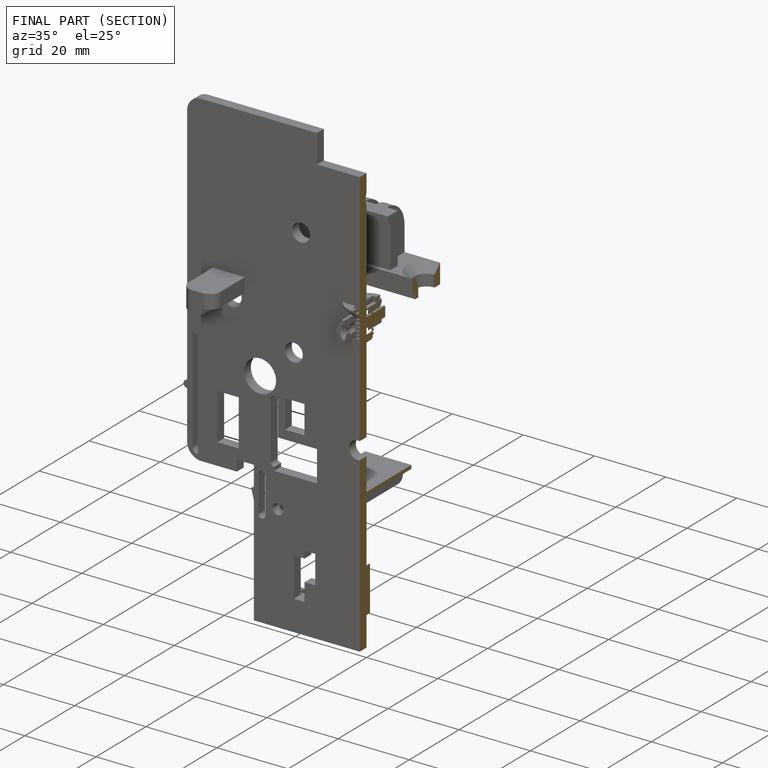
[diagram: finished part — half-section view (interior)]
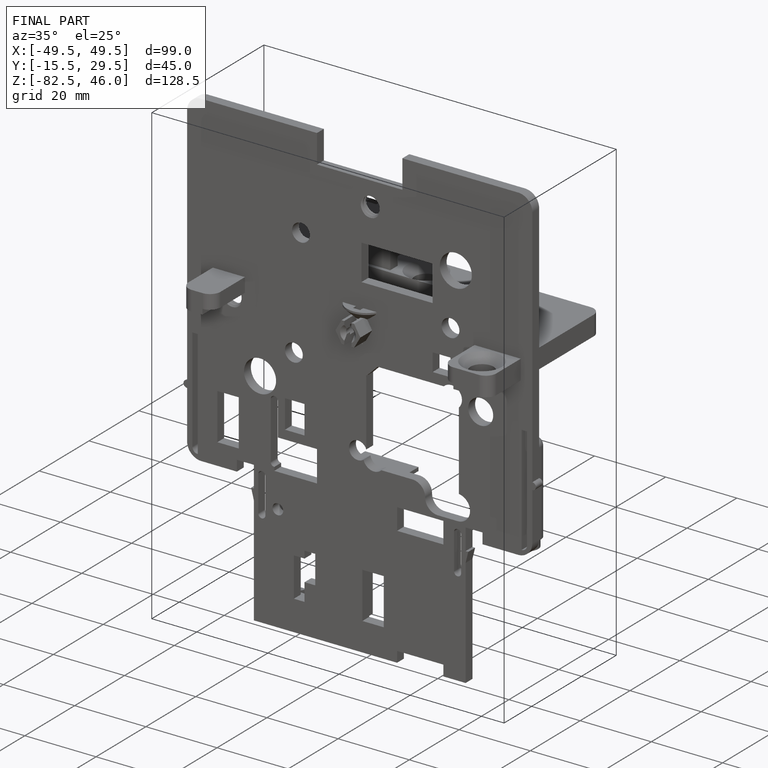
[diagram: finished part — iso view with bounding-box wireframe]
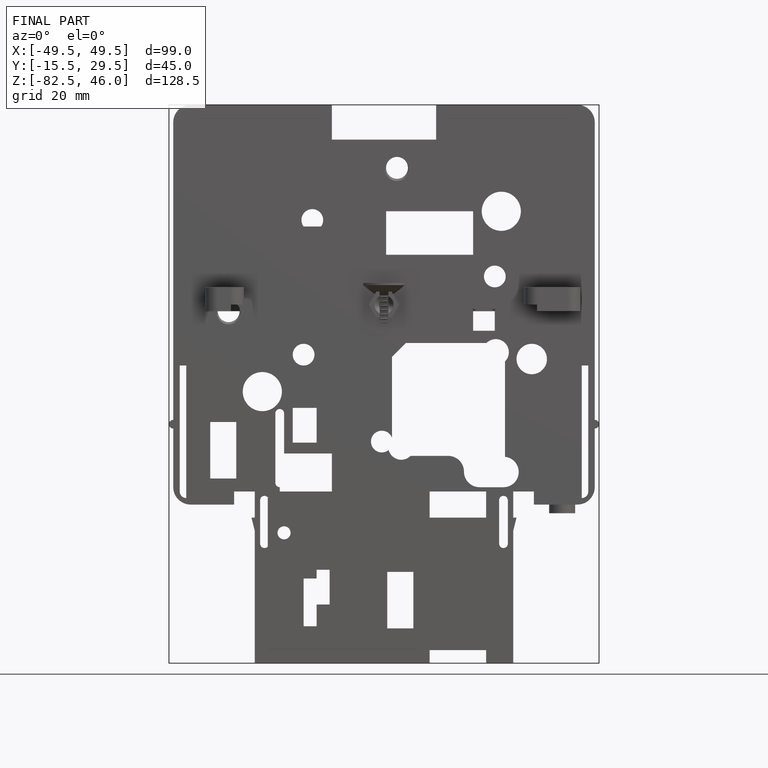
[diagram: finished part — front view with bounding-box wireframe]
